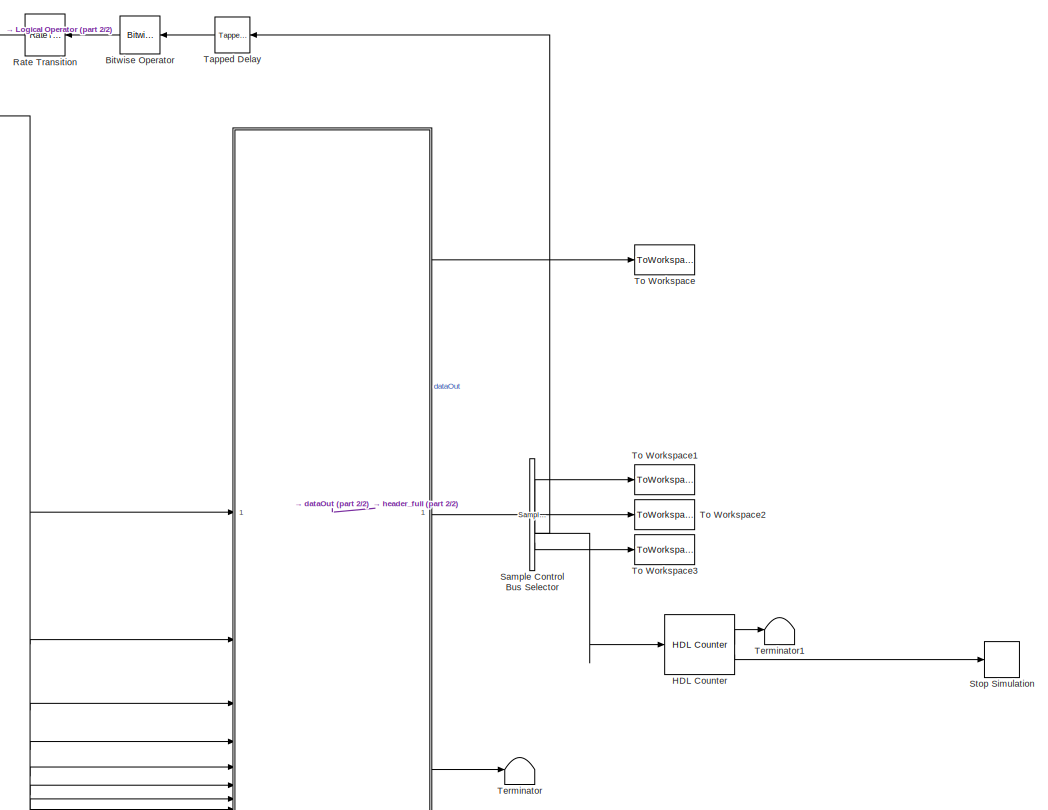
[diagram: root canvas - part 1/2, right side, full height]
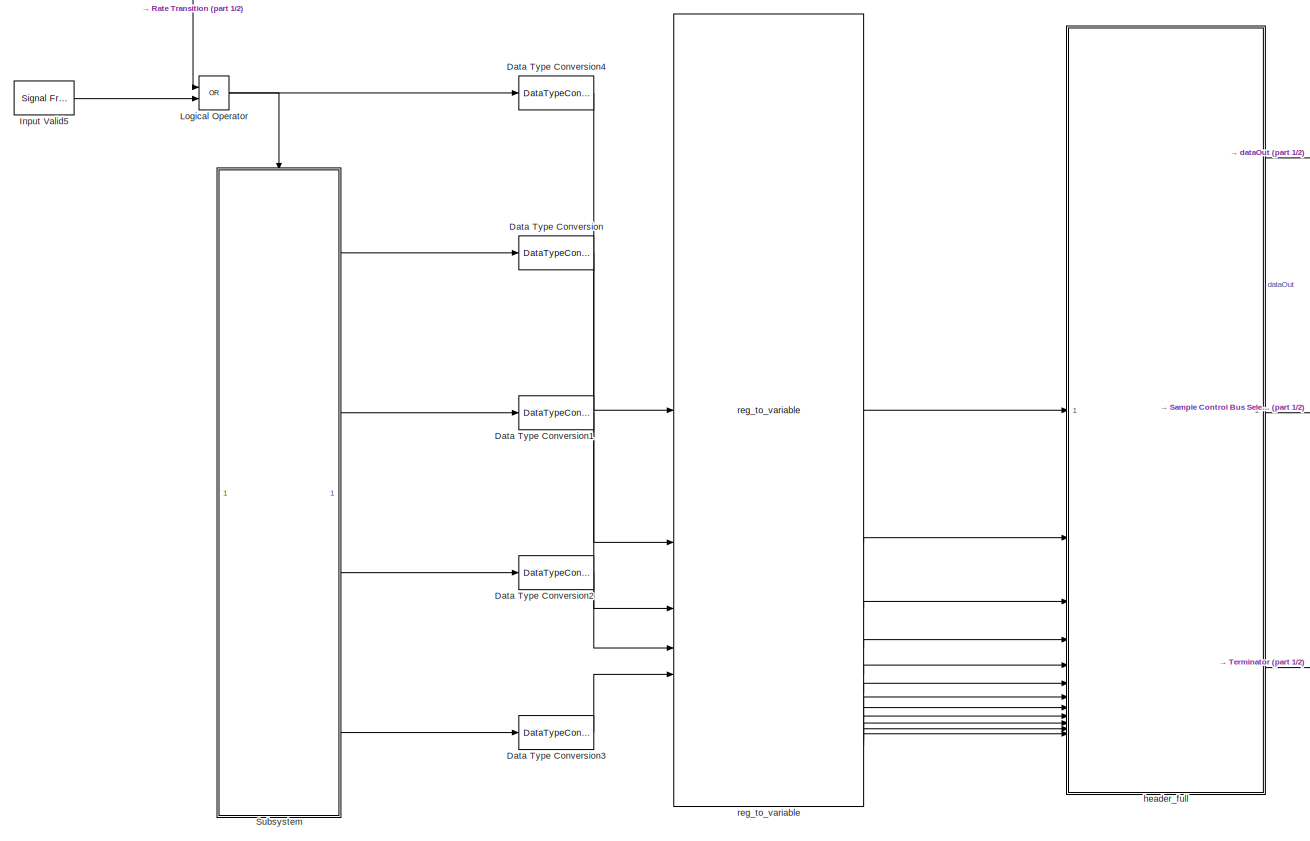
[diagram: root canvas - part 2/2, center side, full height]
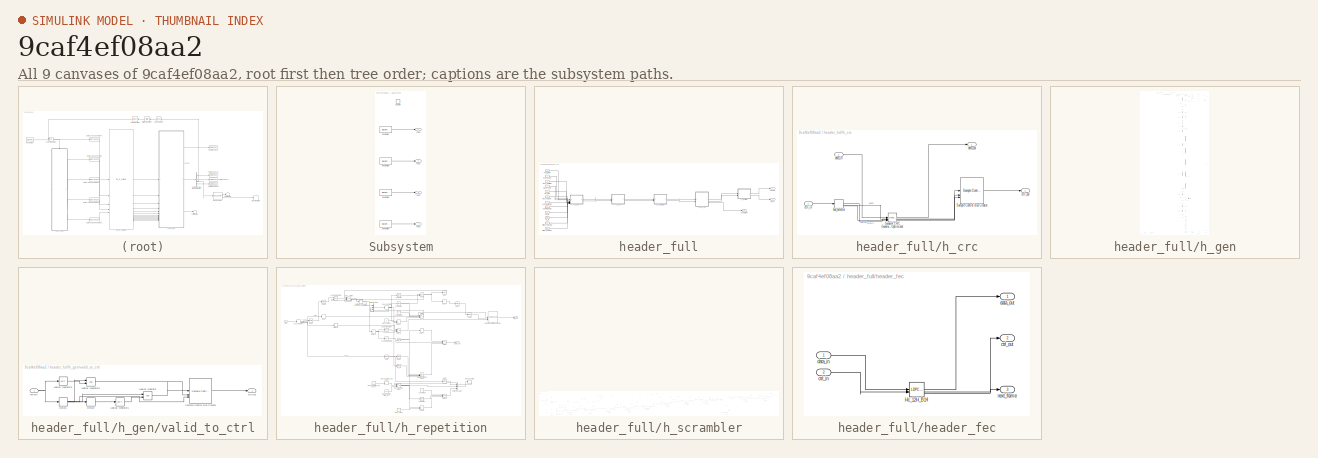
[diagram: thumbnail index - all 9 canvases of the model, root first then tree order]
MODEL slx_9caf4ef08aa2
KIND model
CONFIG AbsTol = auto
CONFIG EnableMultiTasking = off
CONFIG FixedStep = auto
CONFIG MaxStep = auto
CONFIG MinStep = auto
CONFIG RelTol = 1e-3
CONFIG SampleTimeConstraint = Unconstrained
CONFIG SolverName = VariableStepAuto
CONFIG StartTime = 0.0
CONFIG StopTime = 10.0
BLOCK [Reference] Bitwise Operator  REF=simulink/Logic and Bit
Operations/Bitwise
Operator
  LibrarySourceBlock = hdlsllib/Logic and Bit\nOperations/Bitwise\nOperator
  NameLocation = top
  SourceBlock = simulink/Logic and Bit\nOperations/Bitwise\nOperator
  SourceType = Bitwise Operator
BLOCK [DataTypeConversion] Data Type Conversion
  OutDataTypeStr = uint32
  RndMeth = Floor
  SaturateOnIntegerOverflow = off
BLOCK [DataTypeConversion] Data Type Conversion1
  OutDataTypeStr = uint32
  RndMeth = Floor
  SaturateOnIntegerOverflow = off
BLOCK [DataTypeConversion] Data Type Conversion2
  OutDataTypeStr = uint32
  RndMeth = Floor
  SaturateOnIntegerOverflow = off
BLOCK [DataTypeConversion] Data Type Conversion3
  OutDataTypeStr = uint32
  RndMeth = Floor
  SaturateOnIntegerOverflow = off
BLOCK [DataTypeConversion] Data Type Conversion4
  OutDataTypeStr = boolean
  RndMeth = Floor
  SaturateOnIntegerOverflow = off
BLOCK [Reference] HDL Counter  REF=hdlsllib/Sources/HDL Counter
  SourceBlock = hdlsllib/Sources/HDL Counter
  SourceType = HDL Counter
BLOCK [Reference] Input Valid5  REF=dspsrcs4/Signal From
Workspace
  SourceBlock = dspsrcs4/Signal From\nWorkspace
  SourceType = Signal From Workspace
BLOCK [Logic] Logical Operator
  AllPortsSameDT = off
  IconShape = distinctive
  Operator = OR
  OutDataTypeStr = boolean
BLOCK [RateTransition] Rate Transition
  NameLocation = top
  OutPortSampleTimeMultiple = 8
  OutPortSampleTimeOpt = Multiple of input port sample time
BLOCK [Reference] Sample Control Bus Selector  REF=whdlutilities/Sample Control
Bus Selector
  SourceBlock = whdlutilities/Sample Control\nBus Selector
BLOCK [Stop] Stop Simulation
BLOCK [SubSystem] Subsystem
BLOCK [EnablePort] Subsystem/Enable
BLOCK [Reference] Subsystem/Input Valid1  REF=dspsrcs4/Signal From
Workspace
  SourceBlock = dspsrcs4/Signal From\nWorkspace
  SourceType = Signal From Workspace
BLOCK [Reference] Subsystem/Input Valid2  REF=dspsrcs4/Signal From
Workspace
  SourceBlock = dspsrcs4/Signal From\nWorkspace
  SourceType = Signal From Workspace
BLOCK [Reference] Subsystem/Input Valid3  REF=dspsrcs4/Signal From
Workspace
  SourceBlock = dspsrcs4/Signal From\nWorkspace
  SourceType = Signal From Workspace
BLOCK [Reference] Subsystem/Input Valid4  REF=dspsrcs4/Signal From
Workspace
  SourceBlock = dspsrcs4/Signal From\nWorkspace
  SourceType = Signal From Workspace
BLOCK [Outport] Subsystem/reg0
BLOCK [Outport] Subsystem/reg1
  Port = 2
BLOCK [Outport] Subsystem/reg2
  Port = 3
BLOCK [Outport] Subsystem/reg3
  Port = 4
BLOCK [Reference] Tapped Delay  REF=simulink/Discrete/Tapped Delay
  LibrarySourceBlock = hdlsllib/Discrete/Tapped Delay
  NameLocation = top
  SourceBlock = simulink/Discrete/Tapped Delay
  SourceType = Tapped Delay Line
BLOCK [Terminator] Terminator
BLOCK [Terminator] Terminator1
BLOCK [ToWorkspace] To Workspace
  MaxDataPoints = inf
  SampleTime = 1/fs
  Save2DSignal = 2-D array (concatenate along first dimension)
  VariableName = dataOut
BLOCK [ToWorkspace] To Workspace1
  MaxDataPoints = inf
  SampleTime = 1/fs
  Save2DSignal = 2-D array (concatenate along first dimension)
  VariableName = startOut
BLOCK [ToWorkspace] To Workspace2
  MaxDataPoints = inf
  SampleTime = 1/fs
  Save2DSignal = 2-D array (concatenate along first dimension)
  VariableName = endOut
BLOCK [ToWorkspace] To Workspace3
  MaxDataPoints = inf
  SampleTime = 1/fs
  Save2DSignal = 2-D array (concatenate along first dimension)
  VariableName = validOut
BLOCK [SubSystem] header_full
  TreatAsAtomicUnit = on
BLOCK [Inport] header_full/bat_id
  OutDataTypeStr = boolean
  Port = 9
  PortDimensions = [1 5]
  SampleTime = 8e-08
BLOCK [Inport] header_full/block_size
  OutDataTypeStr = boolean
  Port = 4
  PortDimensions = [1 2]
  SampleTime = 8e-08
BLOCK [Inport] header_full/concat_factor
  OutDataTypeStr = boolean
  Port = 7
  PortDimensions = [1 3]
  SampleTime = 8e-08
BLOCK [Inport] header_full/cp_id
  OutDataTypeStr = boolean
  Port = 10
  PortDimensions = [1 3]
  SampleTime = 8e-08
BLOCK [Outport] header_full/ctrl_out
  Port = 2
  SampleTime = 1e-08
BLOCK [Inport] header_full/fec_rate
  OutDataTypeStr = boolean
  Port = 5
  PortDimensions = [1 3]
  SampleTime = 8e-08
BLOCK [SubSystem] header_full/h_crc
BLOCK [Reference] header_full/h_crc/General CRC Generator HDL Optimized  REF=commhdlcrc/General CRC
Generator
HDL Optimized
  SourceBlock = commhdlcrc/General CRC\nGenerator\nHDL Optimized
  SourceType = General CRC Generator HDL Optimized
BLOCK [Reference] header_full/h_crc/Sample Control Bus Creator  REF=whdlutilities/Sample Control
Bus Creator
  SourceBlock = whdlutilities/Sample Control\nBus Creator
  SourceType = Sample Control Bus Creator
BLOCK [BusSelector] header_full/h_crc/bus_selector
  OutputSignals = start,end,valid
BLOCK [Inport] header_full/h_crc/ctrl_in
  Port = 2
  SampleTime = 1e-08
BLOCK [Outport] header_full/h_crc/ctrl_out
  Port = 2
  SampleTime = 1e-08
BLOCK [Inport] header_full/h_crc/data_in
  OutDataTypeStr = boolean
  SampleTime = 1e-08
BLOCK [Outport] header_full/h_crc/data_out
  SampleTime = 1e-08
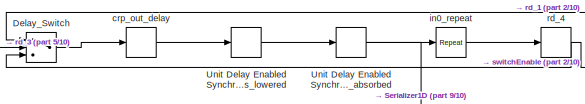
[diagram: header_full/h_gen - part 1/10, top center region]
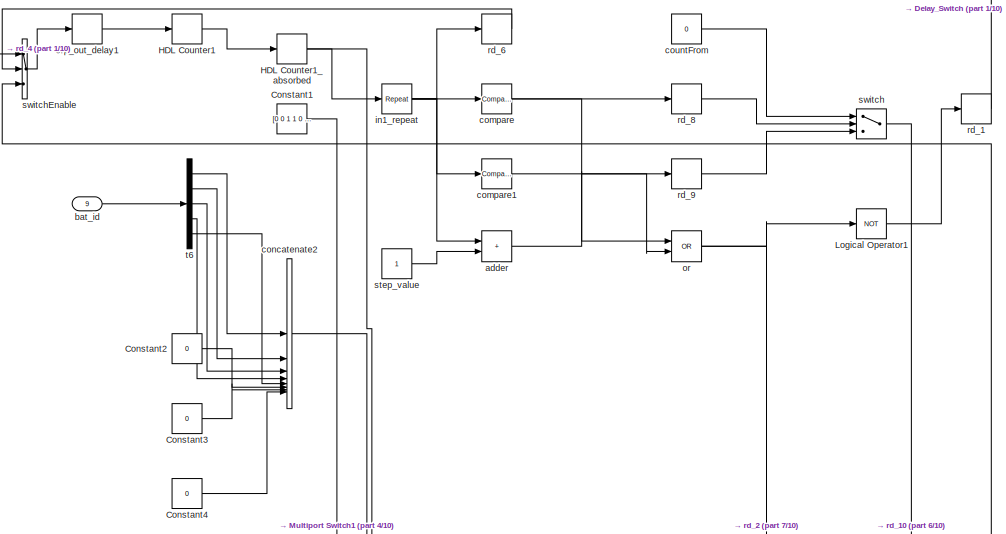
[diagram: header_full/h_gen - part 2/10, top right region]
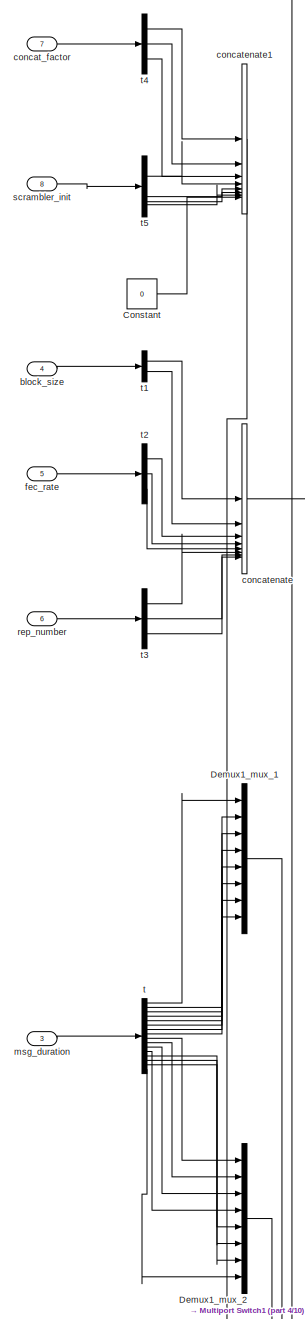
[diagram: header_full/h_gen - part 3/10, top center region]
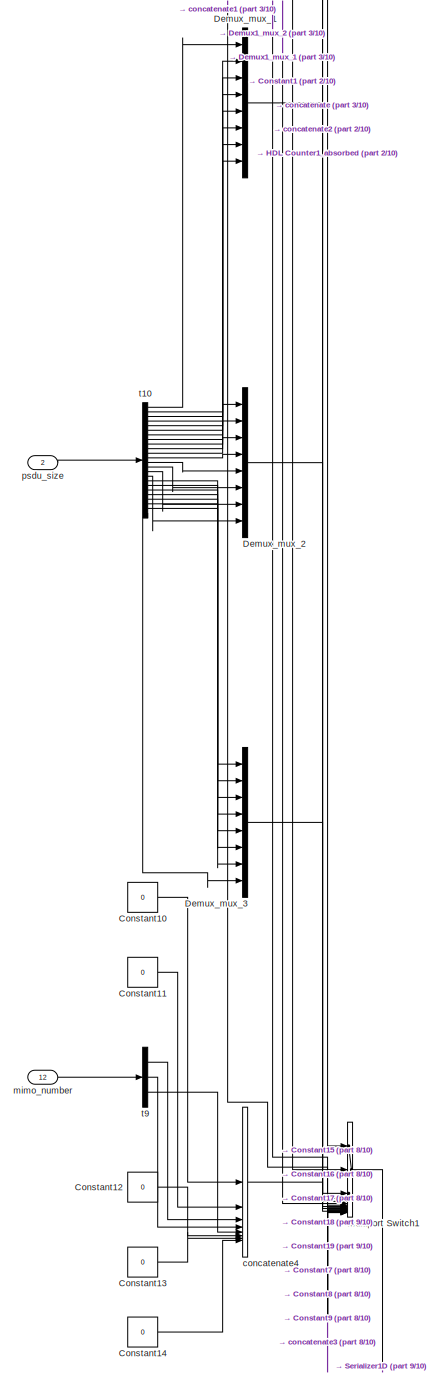
[diagram: header_full/h_gen - part 4/10, central region]
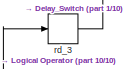
[diagram: header_full/h_gen - part 5/10, middle left region]
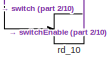
[diagram: header_full/h_gen - part 6/10, middle right region]
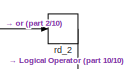
[diagram: header_full/h_gen - part 7/10, middle right region]
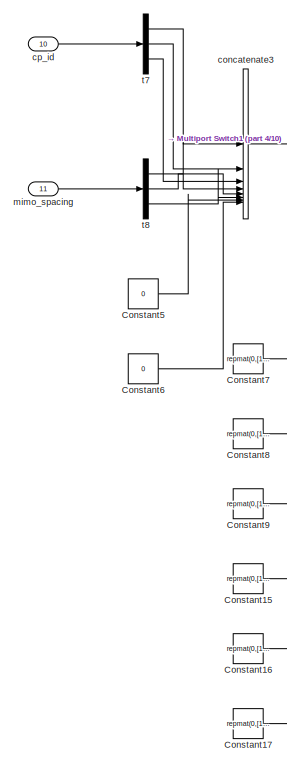
[diagram: header_full/h_gen - part 8/10, bottom center region]
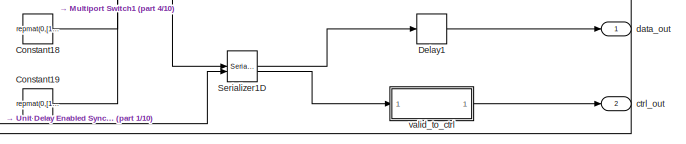
[diagram: header_full/h_gen - part 9/10, bottom right region]
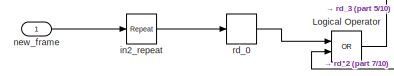
[diagram: header_full/h_gen - part 10/10, bottom left region]
BLOCK [SubSystem] header_full/h_gen
BLOCK [Constant] header_full/h_gen/Constant
  OutDataTypeStr = boolean
  SampleTime = 8e-08
  Value = 0
BLOCK [Constant] header_full/h_gen/Constant1
  OutDataTypeStr = boolean
  SampleTime = 8e-08
  Value = [0 0 1 1 0 0 0 0]
  VectorParams1D = off
BLOCK [Constant] header_full/h_gen/Constant10
  OutDataTypeStr = boolean
  SampleTime = 8e-08
  Value = 0
BLOCK [Constant] header_full/h_gen/Constant11
  OutDataTypeStr = boolean
  SampleTime = 8e-08
  Value = 0
BLOCK [Constant] header_full/h_gen/Constant12
  OutDataTypeStr = boolean
  SampleTime = 8e-08
  Value = 0
BLOCK [Constant] header_full/h_gen/Constant13
  OutDataTypeStr = boolean
  SampleTime = 8e-08
  Value = 0
BLOCK [Constant] header_full/h_gen/Constant14
  OutDataTypeStr = boolean
  SampleTime = 8e-08
  Value = 0
BLOCK [Constant] header_full/h_gen/Constant15
  OutDataTypeStr = boolean
  SampleTime = 8e-08
  Value = repmat(0,[1  8])
  VectorParams1D = off
BLOCK [Constant] header_full/h_gen/Constant16
  OutDataTypeStr = boolean
  SampleTime = 8e-08
  Value = repmat(0,[1  8])
  VectorParams1D = off
BLOCK [Constant] header_full/h_gen/Constant17
  OutDataTypeStr = boolean
  SampleTime = 8e-08
  Value = repmat(0,[1  8])
  VectorParams1D = off
BLOCK [Constant] header_full/h_gen/Constant18
  OutDataTypeStr = boolean
  SampleTime = 8e-08
  Value = repmat(0,[1  8])
  VectorParams1D = off
BLOCK [Constant] header_full/h_gen/Constant19
  OutDataTypeStr = boolean
  SampleTime = 8e-08
  Value = repmat(0,[1  8])
  VectorParams1D = off
BLOCK [Constant] header_full/h_gen/Constant2
  OutDataTypeStr = boolean
  SampleTime = 8e-08
  Value = 0
BLOCK [Constant] header_full/h_gen/Constant3
  OutDataTypeStr = boolean
  SampleTime = 8e-08
  Value = 0
BLOCK [Constant] header_full/h_gen/Constant4
  OutDataTypeStr = boolean
  SampleTime = 8e-08
  Value = 0
BLOCK [Constant] header_full/h_gen/Constant5
  OutDataTypeStr = boolean
  SampleTime = 8e-08
  Value = 0
BLOCK [Constant] header_full/h_gen/Constant6
  OutDataTypeStr = boolean
  SampleTime = 8e-08
  Value = 0
BLOCK [Constant] header_full/h_gen/Constant7
  OutDataTypeStr = boolean
  SampleTime = 8e-08
  Value = repmat(0,[1  8])
  VectorParams1D = off
BLOCK [Constant] header_full/h_gen/Constant8
  OutDataTypeStr = boolean
  SampleTime = 8e-08
  Value = repmat(0,[1  8])
  VectorParams1D = off
BLOCK [Constant] header_full/h_gen/Constant9
  OutDataTypeStr = boolean
  SampleTime = 8e-08
  Value = repmat(0,[1  8])
  VectorParams1D = off
BLOCK [Delay] header_full/h_gen/Delay1
  DelayLength = double(1)
  InitialCondition = 0
  InputPortMap = u0
  SampleTime = 1e-08
BLOCK [Switch] header_full/h_gen/Delay_Switch
  Criteria = u2 ~= 0
  InputSameDT = off
  OutDataTypeStr = boolean
  SampleTime = 1e-08
  SaturateOnIntegerOverflow = off
  Threshold = double(0)
BLOCK [Mux] header_full/h_gen/Demux1_mux_1
  DisplayOption = bar
  Inputs = 8
BLOCK [Mux] header_full/h_gen/Demux1_mux_2
  DisplayOption = bar
  Inputs = 8
BLOCK [Mux] header_full/h_gen/Demux_mux_1
  DisplayOption = bar
  Inputs = 8
BLOCK [Mux] header_full/h_gen/Demux_mux_2
  DisplayOption = bar
  Inputs = 8
BLOCK [Mux] header_full/h_gen/Demux_mux_3
  DisplayOption = bar
  Inputs = 8
BLOCK [RateTransition] header_full/h_gen/HDL Counter1
  OutPortSampleTimeMultiple = 8
  OutPortSampleTimeOpt = Multiple of input port sample time
BLOCK [Delay] header_full/h_gen/HDL Counter1_absorbed
  DelayLength = 0
  InputPortMap = u0
BLOCK [Logic] header_full/h_gen/Logical Operator
  AllPortsSameDT = off
  Operator = OR
  OutDataTypeStr = boolean
  SampleTime = 1e-08
BLOCK [Logic] header_full/h_gen/Logical Operator1
  AllPortsSameDT = off
  Inputs = 1
  Operator = NOT
  OutDataTypeStr = boolean
  SampleTime = 1e-08
BLOCK [MultiPortSwitch] header_full/h_gen/Multiport Switch1
  DataPortOrder = Zero-based contiguous
  DiagnosticForDefault = None
  InputSameDT = off
  Inputs = 19
  SampleTime = 8e-08
  SaturateOnIntegerOverflow = off
  zeroidx = on
BLOCK [Reference] header_full/h_gen/Serializer1D  REF=hdlsllib/HDL Operations/Serializer1D
  SourceBlock = hdlsllib/HDL Operations/Serializer1D
  SourceType = Serializer1D
BLOCK [RateTransition] header_full/h_gen/Unit Delay Enabled Synchronous_lowered
  OutPortSampleTimeMultiple = 8
  OutPortSampleTimeOpt = Multiple of input port sample time
BLOCK [Delay] header_full/h_gen/Unit Delay Enabled Synchronous_lowered_absorbed
  DelayLength = 0
  InputPortMap = u0
BLOCK [Sum] header_full/h_gen/adder
  AccumDataTypeStr = fixdt(0, 5, 0)
  IconShape = rectangular
  OutDataTypeStr = fixdt(0, 5, 0)
  SampleTime = 1e-08
BLOCK [Inport] header_full/h_gen/bat_id
  OutDataTypeStr = boolean
  Port = 9
  PortDimensions = [1 5]
  SampleTime = 8e-08
BLOCK [Inport] header_full/h_gen/block_size
  OutDataTypeStr = boolean
  Port = 4
  PortDimensions = [1 2]
  SampleTime = 8e-08
BLOCK [Reference] header_full/h_gen/compare  REF=simulink/Logic and Bit
Operations/Compare
To Constant
  SourceBlock = simulink/Logic and Bit\nOperations/Compare\nTo Constant
  SourceType = Compare To Constant
BLOCK [Reference] header_full/h_gen/compare1  REF=simulink/Logic and Bit
Operations/Compare
To Constant
  SourceBlock = simulink/Logic and Bit\nOperations/Compare\nTo Constant
  SourceType = Compare To Constant
BLOCK [Inport] header_full/h_gen/concat_factor
  OutDataTypeStr = boolean
  Port = 7
  PortDimensions = [1 3]
  SampleTime = 8e-08
BLOCK [Concatenate] header_full/h_gen/concatenate
  ConcatenateDimension = 2
  Mode = Multidimensional array
  NumInputs = 8
BLOCK [Concatenate] header_full/h_gen/concatenate1
  ConcatenateDimension = 2
  Mode = Multidimensional array
  NumInputs = 8
BLOCK [Concatenate] header_full/h_gen/concatenate2
  ConcatenateDimension = 2
  Mode = Multidimensional array
  NumInputs = 8
BLOCK [Concatenate] header_full/h_gen/concatenate3
  ConcatenateDimension = 2
  Mode = Multidimensional array
  NumInputs = 8
BLOCK [Concatenate] header_full/h_gen/concatenate4
  ConcatenateDimension = 2
  Mode = Multidimensional array
  NumInputs = 8
BLOCK [Constant] header_full/h_gen/countFrom
  OutDataTypeStr = fixdt(0, 5, 0)
  SampleTime = 1e-08
  Value = 0
  VectorParams1D = off
BLOCK [Inport] header_full/h_gen/cp_id
  OutDataTypeStr = boolean
  Port = 10
  PortDimensions = [1 3]
  SampleTime = 8e-08
BLOCK [Delay] header_full/h_gen/crp_out_delay
  DelayLength = double(1)
  InitialCondition = 0
  InputPortMap = u0
  SampleTime = 1e-08
BLOCK [Delay] header_full/h_gen/crp_out_delay1
  DelayLength = double(1)
  InitialCondition = 0
  InputPortMap = u0
  SampleTime = 1e-08
BLOCK [Outport] header_full/h_gen/ctrl_out
  Port = 2
  SampleTime = 1e-08
BLOCK [Outport] header_full/h_gen/data_out
  SampleTime = 1e-08
BLOCK [Inport] header_full/h_gen/fec_rate
  OutDataTypeStr = boolean
  Port = 5
  PortDimensions = [1 3]
  SampleTime = 8e-08
BLOCK [Reference] header_full/h_gen/in0_repeat  REF=dspsigops/Repeat
  SourceBlock = dspsigops/Repeat
  SourceType = Repeat
  UserDataPersistent = on
BLOCK [Reference] header_full/h_gen/in1_repeat  REF=dspsigops/Repeat
  SourceBlock = dspsigops/Repeat
  SourceType = Repeat
  UserDataPersistent = on
BLOCK [Reference] header_full/h_gen/in2_repeat  REF=dspsigops/Repeat
  SourceBlock = dspsigops/Repeat
  SourceType = Repeat
  UserDataPersistent = on
BLOCK [Inport] header_full/h_gen/mimo_number
  OutDataTypeStr = boolean
  Port = 12
  PortDimensions = [1 3]
  SampleTime = 8e-08
BLOCK [Inport] header_full/h_gen/mimo_spacing
  OutDataTypeStr = boolean
  Port = 11
  PortDimensions = [1 3]
  SampleTime = 8e-08
BLOCK [Inport] header_full/h_gen/msg_duration
  OutDataTypeStr = boolean
  Port = 3
  PortDimensions = [1 16]
  SampleTime = 8e-08
BLOCK [Inport] header_full/h_gen/new_frame
  OutDataTypeStr = boolean
  SampleTime = 8e-08
BLOCK [Logic] header_full/h_gen/or
  AllPortsSameDT = off
  Operator = OR
  OutDataTypeStr = boolean
  SampleTime = 1e-08
BLOCK [Inport] header_full/h_gen/psdu_size
  OutDataTypeStr = boolean
  Port = 2
  PortDimensions = [1 24]
  SampleTime = 8e-08
BLOCK [Delay] header_full/h_gen/rd_0
  DelayLength = double(1)
  InitialCondition = 0
  InputPortMap = u0
  SampleTime = 1e-08
BLOCK [Delay] header_full/h_gen/rd_1
  DelayLength = double(2)
  InitialCondition = 0
  InputPortMap = u0
  SampleTime = 1e-08
BLOCK [Delay] header_full/h_gen/rd_10
  DelayLength = double(1)
  InitialCondition = 0
  InputPortMap = u0
  SampleTime = 1e-08
BLOCK [Delay] header_full/h_gen/rd_2
  DelayLength = double(1)
  InitialCondition = 0
  InputPortMap = u0
  SampleTime = 1e-08
BLOCK [Delay] header_full/h_gen/rd_3
  DelayLength = double(1)
  InitialCondition = 0
  InputPortMap = u0
  SampleTime = 1e-08
BLOCK [Delay] header_full/h_gen/rd_4
  DelayLength = double(2)
  InitialCondition = 0
  InputPortMap = u0
  SampleTime = 1e-08
BLOCK [Delay] header_full/h_gen/rd_6
  DelayLength = double(2)
  InitialCondition = 0
  InputPortMap = u0
  SampleTime = 1e-08
BLOCK [Delay] header_full/h_gen/rd_8
  DelayLength = double(1)
  InitialCondition = 0
  InputPortMap = u0
  SampleTime = 1e-08
BLOCK [Delay] header_full/h_gen/rd_9
  DelayLength = double(1)
  InitialCondition = 0
  InputPortMap = u0
  SampleTime = 1e-08
BLOCK [Inport] header_full/h_gen/rep_number
  OutDataTypeStr = boolean
  Port = 6
  PortDimensions = [1 3]
  SampleTime = 8e-08
BLOCK [Inport] header_full/h_gen/scrambler_init
  OutDataTypeStr = boolean
  Port = 8
  PortDimensions = [1 4]
  SampleTime = 8e-08
BLOCK [Constant] header_full/h_gen/step_value
  OutDataTypeStr = fixdt(0, 5, 0)
  SampleTime = 1e-08
  VectorParams1D = off
BLOCK [Switch] header_full/h_gen/switch
  Criteria = u2 ~= 0
  InputSameDT = off
  OutDataTypeStr = fixdt(0, 5, 0)
  SampleTime = 1e-08
  SaturateOnIntegerOverflow = off
  Threshold = double(0)
BLOCK [MultiPortSwitch] header_full/h_gen/switchEnable
  DataPortOrder = Zero-based contiguous
  DiagnosticForDefault = None
  InputSameDT = off
  Inputs = 2
  OutDataTypeStr = fixdt(0, 5, 0)
  SampleTime = 1e-08
  SaturateOnIntegerOverflow = off
  zeroidx = on
BLOCK [Demux] header_full/h_gen/t
  Outputs = 16
BLOCK [Demux] header_full/h_gen/t1
  Outputs = 2
BLOCK [Demux] header_full/h_gen/t10
  Outputs = 24
BLOCK [Demux] header_full/h_gen/t2
  Outputs = 3
BLOCK [Demux] header_full/h_gen/t3
  Outputs = 3
BLOCK [Demux] header_full/h_gen/t4
  Outputs = 3
BLOCK [Demux] header_full/h_gen/t5
BLOCK [Demux] header_full/h_gen/t6
  Outputs = 5
BLOCK [Demux] header_full/h_gen/t7
  Outputs = 3
BLOCK [Demux] header_full/h_gen/t8
  Outputs = 3
BLOCK [Demux] header_full/h_gen/t9
  Outputs = 3
BLOCK [SubSystem] header_full/h_gen/valid_to_ctrl
BLOCK [Delay] header_full/h_gen/valid_to_ctrl/Delay1
  DelayLength = double(1)
  InitialCondition = 0
  InputPortMap = u0
  SampleTime = 1e-08
BLOCK [Delay] header_full/h_gen/valid_to_ctrl/Delay2
  DelayLength = double(1)
  InitialCondition = 0
  InputPortMap = u0
  SampleTime = 1e-08
BLOCK [Logic] header_full/h_gen/valid_to_ctrl/Logical Operator
  AllPortsSameDT = off
  OutDataTypeStr = boolean
  SampleTime = 1e-08
BLOCK [Logic] header_full/h_gen/valid_to_ctrl/Logical Operator1
  AllPortsSameDT = off
  Inputs = 1
  Operator = NOT
  OutDataTypeStr = boolean
  SampleTime = 1e-08
BLOCK [Logic] header_full/h_gen/valid_to_ctrl/Logical Operator2
  AllPortsSameDT = off
  OutDataTypeStr = boolean
  SampleTime = 1e-08
BLOCK [Logic] header_full/h_gen/valid_to_ctrl/Logical Operator3
  AllPortsSameDT = off
  Inputs = 1
  Operator = NOT
  OutDataTypeStr = boolean
  SampleTime = 1e-08
BLOCK [Reference] header_full/h_gen/valid_to_ctrl/Sample Control Bus Creator  REF=whdlutilities/Sample Control
Bus Creator
  SourceBlock = whdlutilities/Sample Control\nBus Creator
  SourceType = Sample Control Bus Creator
BLOCK [Outport] header_full/h_gen/valid_to_ctrl/ctrlOut
  SampleTime = 1e-08
BLOCK [Inport] header_full/h_gen/valid_to_ctrl/validIn
  OutDataTypeStr = boolean
  SampleTime = 1e-08
BLOCK [SubSystem] header_full/h_repetition
BLOCK [Delay] header_full/h_repetition/Delay
  DelayLength = double(1)
  InitialCondition = 0
  InputPortMap = u0
  SampleTime = 1e-08
BLOCK [Delay] header_full/h_repetition/Delay1
  DelayLength = double(1)
  InitialCondition = 0
  InputPortMap = u0
  SampleTime = 1e-08
BLOCK [Delay] header_full/h_repetition/Delay2
  DelayLength = double(1)
  InitialCondition = 0
  InputPortMap = u0
  SampleTime = 1e-08
BLOCK [Delay] header_full/h_repetition/Delay3
  DelayLength = double(1)
  InitialCondition = 0
  InputPortMap = u0
  SampleTime = 1e-08
BLOCK [Delay] header_full/h_repetition/Delay4
  DelayLength = double(1)
  InitialCondition = 0
  InputPortMap = u0
  SampleTime = 1e-08
BLOCK [Switch] header_full/h_repetition/Delay_Switch
  Criteria = u2 ~= 0
  InputSameDT = off
  OutDataTypeStr = boolean
  SampleTime = 1e-08
  SaturateOnIntegerOverflow = off
  Threshold = double(0)
BLOCK [Reference] header_full/h_repetition/From2  REF=hdlmdlgenlib/Buffer
  SourceBlock = hdlmdlgenlib/Buffer
  SourceType = Buffer/Wire
BLOCK [Reference] header_full/h_repetition/From6  REF=hdlmdlgenlib/Buffer
  SourceBlock = hdlmdlgenlib/Buffer
  SourceType = Buffer/Wire
BLOCK [Reference] header_full/h_repetition/From7  REF=hdlmdlgenlib/Buffer
  SourceBlock = hdlmdlgenlib/Buffer
  SourceType = Buffer/Wire
BLOCK [Reference] header_full/h_repetition/From8  REF=hdlmdlgenlib/Buffer
  SourceBlock = hdlmdlgenlib/Buffer
  SourceType = Buffer/Wire
BLOCK [Reference] header_full/h_repetition/Goto  REF=hdlmdlgenlib/Buffer
  SourceBlock = hdlmdlgenlib/Buffer
  SourceType = Buffer/Wire
BLOCK [Reference] header_full/h_repetition/Goto1  REF=hdlmdlgenlib/Buffer
  SourceBlock = hdlmdlgenlib/Buffer
  SourceType = Buffer/Wire
BLOCK [Reference] header_full/h_repetition/Goto4  REF=hdlmdlgenlib/Buffer
  SourceBlock = hdlmdlgenlib/Buffer
  SourceType = Buffer/Wire
BLOCK [Delay] header_full/h_repetition/HDL Counter2
  DelayLength = double(1)
  InitialCondition = 0
  InputPortMap = u0
  SampleTime = 1e-08
BLOCK [Constant] header_full/h_repetition/HDL Counter2_Initial_Val
  OutDataTypeStr = fixdt(0, 9, 0)
  SampleTime = 1e-08
  Value = 334
BLOCK [Constant] header_full/h_repetition/HDL Counter2_ctrl_const
  OutDataTypeStr = boolean
  SampleTime = 1e-08
BLOCK [Delay] header_full/h_repetition/HDL Counter2_ctrl_delay
  DelayLength = double(1)
  InitialCondition = 0
  InputPortMap = u0
  SampleTime = 1e-08
BLOCK [Switch] header_full/h_repetition/HDL Counter2_switch
  Criteria = u2 ~= 0
  InputSameDT = off
  OutDataTypeStr = fixdt(0, 9, 0)
  SampleTime = 1e-08
  SaturateOnIntegerOverflow = off
  Threshold = double(0)
BLOCK [Delay] header_full/h_repetition/HDL Counter3
  DelayLength = double(1)
  InitialCondition = 0
  InputPortMap = u0
  SampleTime = 1e-08
BLOCK [Logic] header_full/h_repetition/Logical Operator
  AllPortsSameDT = off
  Inputs = 1
  Operator = NOT
  OutDataTypeStr = boolean
  SampleTime = 1e-08
BLOCK [Logic] header_full/h_repetition/Logical Operator1
  AllPortsSameDT = off
  Operator = OR
  OutDataTypeStr = boolean
  SampleTime = 1e-08
BLOCK [Logic] header_full/h_repetition/Logical Operator2
  AllPortsSameDT = off
  Inputs = 1
  Operator = NOT
  OutDataTypeStr = boolean
  SampleTime = 1e-08
BLOCK [Logic] header_full/h_repetition/NOT
  AllPortsSameDT = off
  Inputs = 1
  Operator = NOT
  OutDataTypeStr = boolean
  SampleTime = 1e-08
BLOCK [Reference] header_full/h_repetition/Sample Control Bus Creator  REF=whdlutilities/Sample Control
Bus Creator
  SourceBlock = whdlutilities/Sample Control\nBus Creator
  SourceType = Sample Control Bus Creator
BLOCK [Reference] header_full/h_repetition/Simple Dual Port RAM  REF=hdlsllib/HDL RAMs/Simple Dual Port RAM
  SourceBlock = hdlsllib/HDL RAMs/Simple Dual Port RAM
  SourceType = Simple Dual-port RAM
BLOCK [Switch] header_full/h_repetition/Switch
  Criteria = u2 ~= 0
  InputSameDT = off
  OutDataTypeStr = boolean
  SampleTime = 1e-08
  SaturateOnIntegerOverflow = off
  Threshold = double(0)
BLOCK [Switch] header_full/h_repetition/Switch1
  Criteria = u2 ~= 0
  InputSameDT = off
  OutDataTypeStr = boolean
  SampleTime = 1e-08
  SaturateOnIntegerOverflow = off
  Threshold = double(0)
BLOCK [Delay] header_full/h_repetition/Unit Delay Enabled Synchronous1_lowered
  DelayLength = double(1)
  InitialCondition = 0
  InputPortMap = u0
  SampleTime = 1e-08
BLOCK [Sum] header_full/h_repetition/adder
  AccumDataTypeStr = fixdt(0, 9, 0)
  IconShape = rectangular
  OutDataTypeStr = fixdt(0, 9, 0)
  SampleTime = 1e-08
BLOCK [Sum] header_full/h_repetition/adder1
  AccumDataTypeStr = fixdt(0, 9, 0)
  IconShape = rectangular
  OutDataTypeStr = fixdt(0, 9, 0)
  SampleTime = 1e-08
BLOCK [BusSelector] header_full/h_repetition/bus_selector
  OutputSignals = start,end,valid
BLOCK [Reference] header_full/h_repetition/compare  REF=simulink/Logic and Bit
Operations/Compare
To Constant
  SourceBlock = simulink/Logic and Bit\nOperations/Compare\nTo Constant
  SourceType = Compare To Constant
BLOCK [Reference] header_full/h_repetition/compare1  REF=simulink/Logic and Bit
Operations/Compare
To Constant
  SourceBlock = simulink/Logic and Bit\nOperations/Compare\nTo Constant
  SourceType = Compare To Constant
BLOCK [Reference] header_full/h_repetition/compare2  REF=simulink/Logic and Bit
Operations/Compare
To Constant
  SourceBlock = simulink/Logic and Bit\nOperations/Compare\nTo Constant
  SourceType = Compare To Constant
BLOCK [Constant] header_full/h_repetition/countFrom
  OutDataTypeStr = fixdt(0, 9, 0)
  SampleTime = 1e-08
  Value = 0
  VectorParams1D = off
BLOCK [Constant] header_full/h_repetition/countFrom1
  OutDataTypeStr = fixdt(0, 9, 0)
  SampleTime = 1e-08
  Value = 0
  VectorParams1D = off
BLOCK [Inport] header_full/h_repetition/ctrl_in
  Port = 2
  SampleTime = 1e-08
BLOCK [Outport] header_full/h_repetition/ctrl_out
  Port = 2
  SampleTime = 1e-08
BLOCK [Inport] header_full/h_repetition/data_in
  OutDataTypeStr = boolean
  SampleTime = 1e-08
BLOCK [Outport] header_full/h_repetition/data_out
  SampleTime = 1e-08
BLOCK [Logic] header_full/h_repetition/or
  AllPortsSameDT = off
  Operator = OR
  OutDataTypeStr = boolean
  SampleTime = 1e-08
BLOCK [Constant] header_full/h_repetition/step_value
  OutDataTypeStr = fixdt(0, 9, 0)
  SampleTime = 1e-08
  VectorParams1D = off
BLOCK [Constant] header_full/h_repetition/step_value1
  OutDataTypeStr = fixdt(0, 9, 0)
  SampleTime = 1e-08
  VectorParams1D = off
BLOCK [Switch] header_full/h_repetition/switch
  Criteria = u2 ~= 0
  InputSameDT = off
  OutDataTypeStr = fixdt(0, 9, 0)
  SampleTime = 1e-08
  SaturateOnIntegerOverflow = off
  Threshold = double(0)
BLOCK [Switch] header_full/h_repetition/switch1
  Criteria = u2 ~= 0
  InputSameDT = off
  OutDataTypeStr = fixdt(0, 9, 0)
  SampleTime = 1e-08
  SaturateOnIntegerOverflow = off
  Threshold = double(0)
BLOCK [MultiPortSwitch] header_full/h_repetition/switchEnable
  DataPortOrder = Zero-based contiguous
  DiagnosticForDefault = None
  InputSameDT = off
  Inputs = 2
  OutDataTypeStr = fixdt(0, 9, 0)
  SampleTime = 1e-08
  SaturateOnIntegerOverflow = off
  zeroidx = on
BLOCK [MultiPortSwitch] header_full/h_repetition/switchEnable1
  DataPortOrder = Zero-based contiguous
  DiagnosticForDefault = None
  InputSameDT = off
  Inputs = 2
  OutDataTypeStr = fixdt(0, 9, 0)
  SampleTime = 1e-08
  SaturateOnIntegerOverflow = off
  zeroidx = on
BLOCK [Reference] header_full/h_repetition/t  REF=hdlmdlgenlib/Buffer
  SourceBlock = hdlmdlgenlib/Buffer
  SourceType = Buffer/Wire
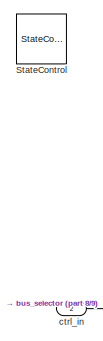
[diagram: header_full/h_scrambler - part 1/9, top left region]
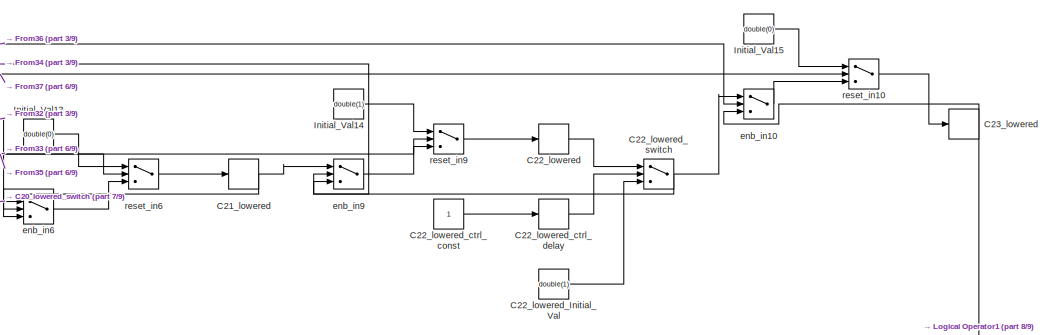
[diagram: header_full/h_scrambler - part 2/9, top right region]
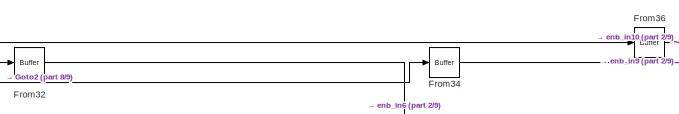
[diagram: header_full/h_scrambler - part 3/9, top center region]
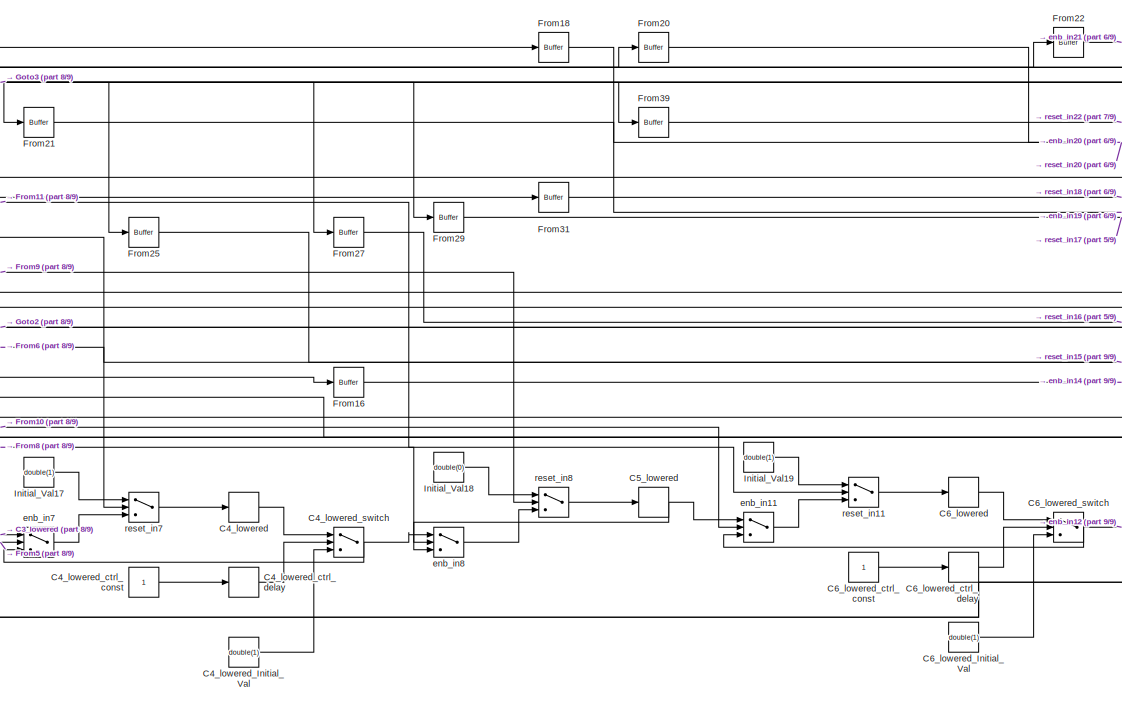
[diagram: header_full/h_scrambler - part 4/9, left side, full height]
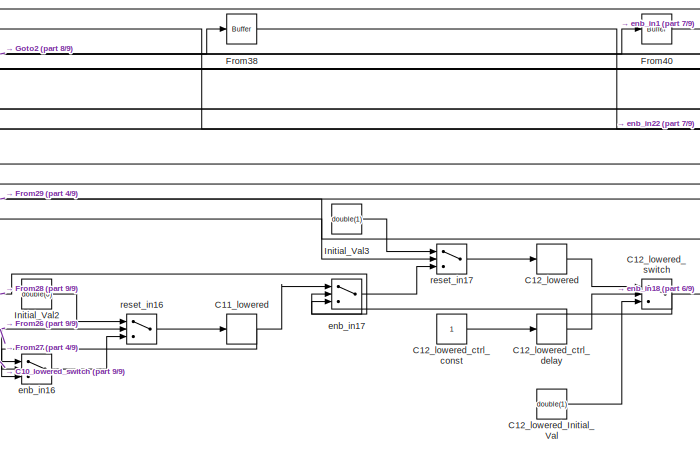
[diagram: header_full/h_scrambler - part 5/9, central region]
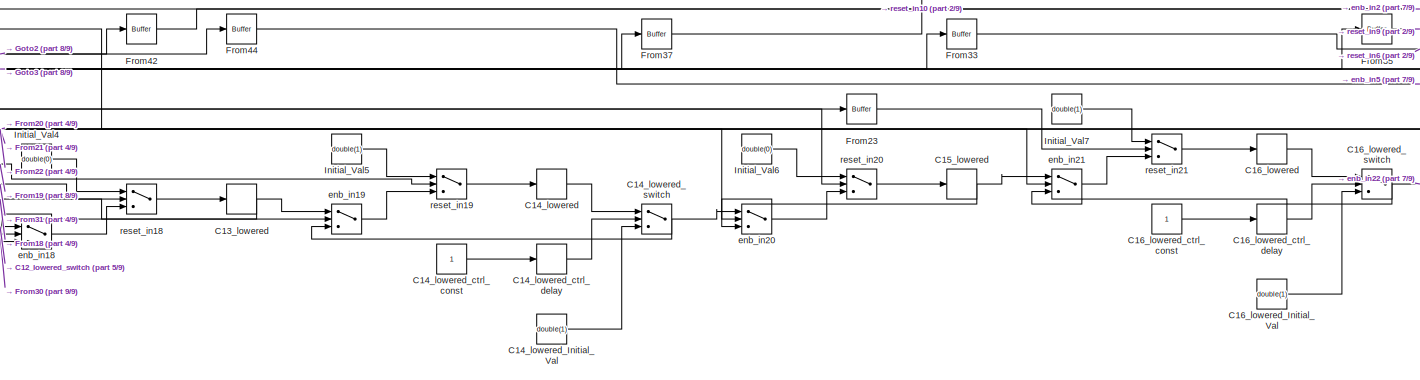
[diagram: header_full/h_scrambler - part 6/9, central region]
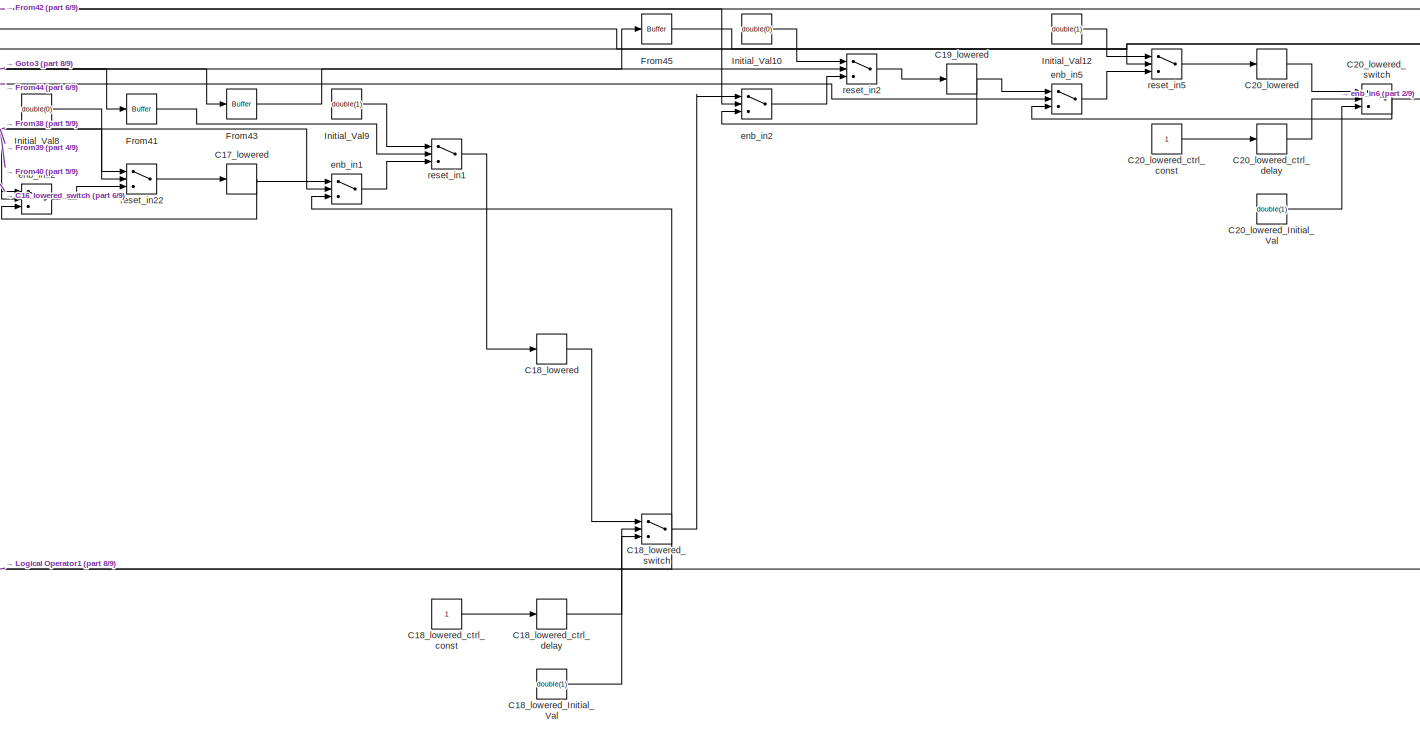
[diagram: header_full/h_scrambler - part 7/9, right side, full height]
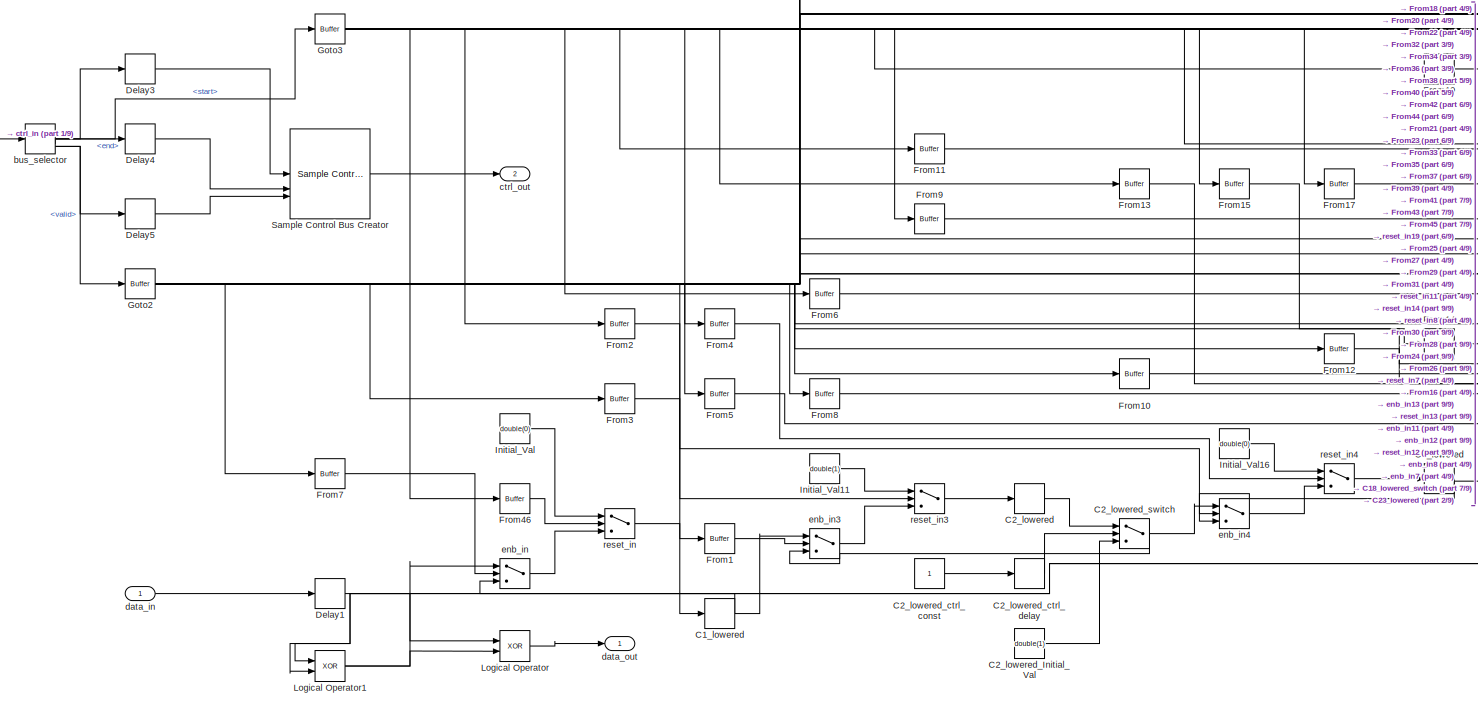
[diagram: header_full/h_scrambler - part 8/9, left side, full height]
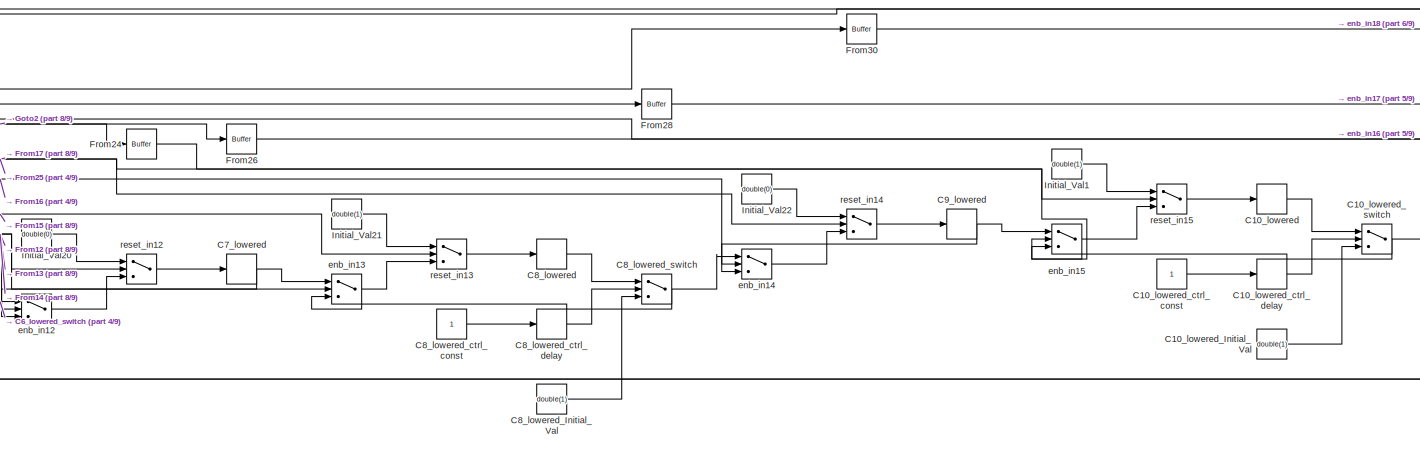
[diagram: header_full/h_scrambler - part 9/9, central region]
BLOCK [SubSystem] header_full/h_scrambler
BLOCK [Delay] header_full/h_scrambler/C10_lowered
  DelayLength = double(1)
  InitialCondition = 0
  InputPortMap = u0
  SampleTime = 1e-08
BLOCK [Constant] header_full/h_scrambler/C10_lowered_Initial_Val
  OutDataTypeStr = boolean
  SampleTime = 1e-08
  Value = double(1)
BLOCK [Constant] header_full/h_scrambler/C10_lowered_ctrl_const
  OutDataTypeStr = boolean
  SampleTime = 1e-08
BLOCK [Delay] header_full/h_scrambler/C10_lowered_ctrl_delay
  DelayLength = double(1)
  InitialCondition = 0
  InputPortMap = u0
  SampleTime = 1e-08
BLOCK [Switch] header_full/h_scrambler/C10_lowered_switch
  Criteria = u2 ~= 0
  InputSameDT = off
  OutDataTypeStr = boolean
  SampleTime = 1e-08
  SaturateOnIntegerOverflow = off
  Threshold = double(0)
BLOCK [Delay] header_full/h_scrambler/C11_lowered
  DelayLength = double(1)
  InitialCondition = 0
  InputPortMap = u0
  SampleTime = 1e-08
BLOCK [Delay] header_full/h_scrambler/C12_lowered
  DelayLength = double(1)
  InitialCondition = 0
  InputPortMap = u0
  SampleTime = 1e-08
BLOCK [Constant] header_full/h_scrambler/C12_lowered_Initial_Val
  OutDataTypeStr = boolean
  SampleTime = 1e-08
  Value = double(1)
BLOCK [Constant] header_full/h_scrambler/C12_lowered_ctrl_const
  OutDataTypeStr = boolean
  SampleTime = 1e-08
BLOCK [Delay] header_full/h_scrambler/C12_lowered_ctrl_delay
  DelayLength = double(1)
  InitialCondition = 0
  InputPortMap = u0
  SampleTime = 1e-08
BLOCK [Switch] header_full/h_scrambler/C12_lowered_switch
  Criteria = u2 ~= 0
  InputSameDT = off
  OutDataTypeStr = boolean
  SampleTime = 1e-08
  SaturateOnIntegerOverflow = off
  Threshold = double(0)
BLOCK [Delay] header_full/h_scrambler/C13_lowered
  DelayLength = double(1)
  InitialCondition = 0
  InputPortMap = u0
  SampleTime = 1e-08
BLOCK [Delay] header_full/h_scrambler/C14_lowered
  DelayLength = double(1)
  InitialCondition = 0
  InputPortMap = u0
  SampleTime = 1e-08
BLOCK [Constant] header_full/h_scrambler/C14_lowered_Initial_Val
  OutDataTypeStr = boolean
  SampleTime = 1e-08
  Value = double(1)
BLOCK [Constant] header_full/h_scrambler/C14_lowered_ctrl_const
  OutDataTypeStr = boolean
  SampleTime = 1e-08
BLOCK [Delay] header_full/h_scrambler/C14_lowered_ctrl_delay
  DelayLength = double(1)
  InitialCondition = 0
  InputPortMap = u0
  SampleTime = 1e-08
BLOCK [Switch] header_full/h_scrambler/C14_lowered_switch
  Criteria = u2 ~= 0
  InputSameDT = off
  OutDataTypeStr = boolean
  SampleTime = 1e-08
  SaturateOnIntegerOverflow = off
  Threshold = double(0)
BLOCK [Delay] header_full/h_scrambler/C15_lowered
  DelayLength = double(1)
  InitialCondition = 0
  InputPortMap = u0
  SampleTime = 1e-08
BLOCK [Delay] header_full/h_scrambler/C16_lowered
  DelayLength = double(1)
  InitialCondition = 0
  InputPortMap = u0
  SampleTime = 1e-08
BLOCK [Constant] header_full/h_scrambler/C16_lowered_Initial_Val
  OutDataTypeStr = boolean
  SampleTime = 1e-08
  Value = double(1)
BLOCK [Constant] header_full/h_scrambler/C16_lowered_ctrl_const
  OutDataTypeStr = boolean
  SampleTime = 1e-08
BLOCK [Delay] header_full/h_scrambler/C16_lowered_ctrl_delay
  DelayLength = double(1)
  InitialCondition = 0
  InputPortMap = u0
  SampleTime = 1e-08
BLOCK [Switch] header_full/h_scrambler/C16_lowered_switch
  Criteria = u2 ~= 0
  InputSameDT = off
  OutDataTypeStr = boolean
  SampleTime = 1e-08
  SaturateOnIntegerOverflow = off
  Threshold = double(0)
BLOCK [Delay] header_full/h_scrambler/C17_lowered
  DelayLength = double(1)
  InitialCondition = 0
  InputPortMap = u0
  SampleTime = 1e-08
BLOCK [Delay] header_full/h_scrambler/C18_lowered
  DelayLength = double(1)
  InitialCondition = 0
  InputPortMap = u0
  SampleTime = 1e-08
BLOCK [Constant] header_full/h_scrambler/C18_lowered_Initial_Val
  OutDataTypeStr = boolean
  SampleTime = 1e-08
  Value = double(1)
BLOCK [Constant] header_full/h_scrambler/C18_lowered_ctrl_const
  OutDataTypeStr = boolean
  SampleTime = 1e-08
BLOCK [Delay] header_full/h_scrambler/C18_lowered_ctrl_delay
  DelayLength = double(1)
  InitialCondition = 0
  InputPortMap = u0
  SampleTime = 1e-08
BLOCK [Switch] header_full/h_scrambler/C18_lowered_switch
  Criteria = u2 ~= 0
  InputSameDT = off
  OutDataTypeStr = boolean
  SampleTime = 1e-08
  SaturateOnIntegerOverflow = off
  Threshold = double(0)
BLOCK [Delay] header_full/h_scrambler/C19_lowered
  DelayLength = double(1)
  InitialCondition = 0
  InputPortMap = u0
  SampleTime = 1e-08
BLOCK [Delay] header_full/h_scrambler/C1_lowered
  DelayLength = double(1)
  InitialCondition = 0
  InputPortMap = u0
  SampleTime = 1e-08
BLOCK [Delay] header_full/h_scrambler/C20_lowered
  DelayLength = double(1)
  InitialCondition = 0
  InputPortMap = u0
  SampleTime = 1e-08
BLOCK [Constant] header_full/h_scrambler/C20_lowered_Initial_Val
  OutDataTypeStr = boolean
  SampleTime = 1e-08
  Value = double(1)
BLOCK [Constant] header_full/h_scrambler/C20_lowered_ctrl_const
  OutDataTypeStr = boolean
  SampleTime = 1e-08
BLOCK [Delay] header_full/h_scrambler/C20_lowered_ctrl_delay
  DelayLength = double(1)
  InitialCondition = 0
  InputPortMap = u0
  SampleTime = 1e-08
BLOCK [Switch] header_full/h_scrambler/C20_lowered_switch
  Criteria = u2 ~= 0
  InputSameDT = off
  OutDataTypeStr = boolean
  SampleTime = 1e-08
  SaturateOnIntegerOverflow = off
  Threshold = double(0)
BLOCK [Delay] header_full/h_scrambler/C21_lowered
  DelayLength = double(1)
  InitialCondition = 0
  InputPortMap = u0
  SampleTime = 1e-08
BLOCK [Delay] header_full/h_scrambler/C22_lowered
  DelayLength = double(1)
  InitialCondition = 0
  InputPortMap = u0
  SampleTime = 1e-08
BLOCK [Constant] header_full/h_scrambler/C22_lowered_Initial_Val
  OutDataTypeStr = boolean
  SampleTime = 1e-08
  Value = double(1)
BLOCK [Constant] header_full/h_scrambler/C22_lowered_ctrl_const
  OutDataTypeStr = boolean
  SampleTime = 1e-08
BLOCK [Delay] header_full/h_scrambler/C22_lowered_ctrl_delay
  DelayLength = double(1)
  InitialCondition = 0
  InputPortMap = u0
  SampleTime = 1e-08
BLOCK [Switch] header_full/h_scrambler/C22_lowered_switch
  Criteria = u2 ~= 0
  InputSameDT = off
  OutDataTypeStr = boolean
  SampleTime = 1e-08
  SaturateOnIntegerOverflow = off
  Threshold = double(0)
BLOCK [Delay] header_full/h_scrambler/C23_lowered
  DelayLength = double(1)
  InitialCondition = 0
  InputPortMap = u0
  SampleTime = 1e-08
BLOCK [Delay] header_full/h_scrambler/C2_lowered
  DelayLength = double(1)
  InitialCondition = 0
  InputPortMap = u0
  SampleTime = 1e-08
BLOCK [Constant] header_full/h_scrambler/C2_lowered_Initial_Val
  OutDataTypeStr = boolean
  SampleTime = 1e-08
  Value = double(1)
BLOCK [Constant] header_full/h_scrambler/C2_lowered_ctrl_const
  OutDataTypeStr = boolean
  SampleTime = 1e-08
BLOCK [Delay] header_full/h_scrambler/C2_lowered_ctrl_delay
  DelayLength = double(1)
  InitialCondition = 0
  InputPortMap = u0
  SampleTime = 1e-08
BLOCK [Switch] header_full/h_scrambler/C2_lowered_switch
  Criteria = u2 ~= 0
  InputSameDT = off
  OutDataTypeStr = boolean
  SampleTime = 1e-08
  SaturateOnIntegerOverflow = off
  Threshold = double(0)
BLOCK [Delay] header_full/h_scrambler/C3_lowered
  DelayLength = double(1)
  InitialCondition = 0
  InputPortMap = u0
  SampleTime = 1e-08
BLOCK [Delay] header_full/h_scrambler/C4_lowered
  DelayLength = double(1)
  InitialCondition = 0
  InputPortMap = u0
  SampleTime = 1e-08
BLOCK [Constant] header_full/h_scrambler/C4_lowered_Initial_Val
  OutDataTypeStr = boolean
  SampleTime = 1e-08
  Value = double(1)
BLOCK [Constant] header_full/h_scrambler/C4_lowered_ctrl_const
  OutDataTypeStr = boolean
  SampleTime = 1e-08
BLOCK [Delay] header_full/h_scrambler/C4_lowered_ctrl_delay
  DelayLength = double(1)
  InitialCondition = 0
  InputPortMap = u0
  SampleTime = 1e-08
BLOCK [Switch] header_full/h_scrambler/C4_lowered_switch
  Criteria = u2 ~= 0
  InputSameDT = off
  OutDataTypeStr = boolean
  SampleTime = 1e-08
  SaturateOnIntegerOverflow = off
  Threshold = double(0)
BLOCK [Delay] header_full/h_scrambler/C5_lowered
  DelayLength = double(1)
  InitialCondition = 0
  InputPortMap = u0
  SampleTime = 1e-08
BLOCK [Delay] header_full/h_scrambler/C6_lowered
  DelayLength = double(1)
  InitialCondition = 0
  InputPortMap = u0
  SampleTime = 1e-08
BLOCK [Constant] header_full/h_scrambler/C6_lowered_Initial_Val
  OutDataTypeStr = boolean
  SampleTime = 1e-08
  Value = double(1)
BLOCK [Constant] header_full/h_scrambler/C6_lowered_ctrl_const
  OutDataTypeStr = boolean
  SampleTime = 1e-08
BLOCK [Delay] header_full/h_scrambler/C6_lowered_ctrl_delay
  DelayLength = double(1)
  InitialCondition = 0
  InputPortMap = u0
  SampleTime = 1e-08
BLOCK [Switch] header_full/h_scrambler/C6_lowered_switch
  Criteria = u2 ~= 0
  InputSameDT = off
  OutDataTypeStr = boolean
  SampleTime = 1e-08
  SaturateOnIntegerOverflow = off
  Threshold = double(0)
BLOCK [Delay] header_full/h_scrambler/C7_lowered
  DelayLength = double(1)
  InitialCondition = 0
  InputPortMap = u0
  SampleTime = 1e-08
BLOCK [Delay] header_full/h_scrambler/C8_lowered
  DelayLength = double(1)
  InitialCondition = 0
  InputPortMap = u0
  SampleTime = 1e-08
BLOCK [Constant] header_full/h_scrambler/C8_lowered_Initial_Val
  OutDataTypeStr = boolean
  SampleTime = 1e-08
  Value = double(1)
BLOCK [Constant] header_full/h_scrambler/C8_lowered_ctrl_const
  OutDataTypeStr = boolean
  SampleTime = 1e-08
BLOCK [Delay] header_full/h_scrambler/C8_lowered_ctrl_delay
  DelayLength = double(1)
  InitialCondition = 0
  InputPortMap = u0
  SampleTime = 1e-08
BLOCK [Switch] header_full/h_scrambler/C8_lowered_switch
  Criteria = u2 ~= 0
  InputSameDT = off
  OutDataTypeStr = boolean
  SampleTime = 1e-08
  SaturateOnIntegerOverflow = off
  Threshold = double(0)
BLOCK [Delay] header_full/h_scrambler/C9_lowered
  DelayLength = double(1)
  InitialCondition = 0
  InputPortMap = u0
  SampleTime = 1e-08
BLOCK [Delay] header_full/h_scrambler/Delay1
  DelayLength = double(1)
  InitialCondition = 0
  InputPortMap = u0
  SampleTime = 1e-08
BLOCK [Delay] header_full/h_scrambler/Delay3
  DelayLength = double(1)
  InitialCondition = 0
  InputPortMap = u0
  SampleTime = 1e-08
BLOCK [Delay] header_full/h_scrambler/Delay4
  DelayLength = double(1)
  InitialCondition = 0
  InputPortMap = u0
  SampleTime = 1e-08
BLOCK [Delay] header_full/h_scrambler/Delay5
  DelayLength = double(1)
  InitialCondition = 0
  InputPortMap = u0
  SampleTime = 1e-08
BLOCK [Reference] header_full/h_scrambler/From1  REF=hdlmdlgenlib/Buffer
  SourceBlock = hdlmdlgenlib/Buffer
  SourceType = Buffer/Wire
BLOCK [Reference] header_full/h_scrambler/From10  REF=hdlmdlgenlib/Buffer
  SourceBlock = hdlmdlgenlib/Buffer
  SourceType = Buffer/Wire
BLOCK [Reference] header_full/h_scrambler/From11  REF=hdlmdlgenlib/Buffer
  SourceBlock = hdlmdlgenlib/Buffer
  SourceType = Buffer/Wire
BLOCK [Reference] header_full/h_scrambler/From12  REF=hdlmdlgenlib/Buffer
  SourceBlock = hdlmdlgenlib/Buffer
  SourceType = Buffer/Wire
BLOCK [Reference] header_full/h_scrambler/From13  REF=hdlmdlgenlib/Buffer
  SourceBlock = hdlmdlgenlib/Buffer
  SourceType = Buffer/Wire
BLOCK [Reference] header_full/h_scrambler/From14  REF=hdlmdlgenlib/Buffer
  SourceBlock = hdlmdlgenlib/Buffer
  SourceType = Buffer/Wire
BLOCK [Reference] header_full/h_scrambler/From15  REF=hdlmdlgenlib/Buffer
  SourceBlock = hdlmdlgenlib/Buffer
  SourceType = Buffer/Wire
BLOCK [Reference] header_full/h_scrambler/From16  REF=hdlmdlgenlib/Buffer
  SourceBlock = hdlmdlgenlib/Buffer
  SourceType = Buffer/Wire
BLOCK [Reference] header_full/h_scrambler/From17  REF=hdlmdlgenlib/Buffer
  SourceBlock = hdlmdlgenlib/Buffer
  SourceType = Buffer/Wire
BLOCK [Reference] header_full/h_scrambler/From18  REF=hdlmdlgenlib/Buffer
  SourceBlock = hdlmdlgenlib/Buffer
  SourceType = Buffer/Wire
BLOCK [Reference] header_full/h_scrambler/From19  REF=hdlmdlgenlib/Buffer
  SourceBlock = hdlmdlgenlib/Buffer
  SourceType = Buffer/Wire
BLOCK [Reference] header_full/h_scrambler/From2  REF=hdlmdlgenlib/Buffer
  SourceBlock = hdlmdlgenlib/Buffer
  SourceType = Buffer/Wire
BLOCK [Reference] header_full/h_scrambler/From20  REF=hdlmdlgenlib/Buffer
  SourceBlock = hdlmdlgenlib/Buffer
  SourceType = Buffer/Wire
BLOCK [Reference] header_full/h_scrambler/From21  REF=hdlmdlgenlib/Buffer
  SourceBlock = hdlmdlgenlib/Buffer
  SourceType = Buffer/Wire
BLOCK [Reference] header_full/h_scrambler/From22  REF=hdlmdlgenlib/Buffer
  SourceBlock = hdlmdlgenlib/Buffer
  SourceType = Buffer/Wire
BLOCK [Reference] header_full/h_scrambler/From23  REF=hdlmdlgenlib/Buffer
  SourceBlock = hdlmdlgenlib/Buffer
  SourceType = Buffer/Wire
BLOCK [Reference] header_full/h_scrambler/From24  REF=hdlmdlgenlib/Buffer
  SourceBlock = hdlmdlgenlib/Buffer
  SourceType = Buffer/Wire
BLOCK [Reference] header_full/h_scrambler/From25  REF=hdlmdlgenlib/Buffer
  SourceBlock = hdlmdlgenlib/Buffer
  SourceType = Buffer/Wire
BLOCK [Reference] header_full/h_scrambler/From26  REF=hdlmdlgenlib/Buffer
  SourceBlock = hdlmdlgenlib/Buffer
  SourceType = Buffer/Wire
BLOCK [Reference] header_full/h_scrambler/From27  REF=hdlmdlgenlib/Buffer
  SourceBlock = hdlmdlgenlib/Buffer
  SourceType = Buffer/Wire
BLOCK [Reference] header_full/h_scrambler/From28  REF=hdlmdlgenlib/Buffer
  SourceBlock = hdlmdlgenlib/Buffer
  SourceType = Buffer/Wire
BLOCK [Reference] header_full/h_scrambler/From29  REF=hdlmdlgenlib/Buffer
  SourceBlock = hdlmdlgenlib/Buffer
  SourceType = Buffer/Wire
BLOCK [Reference] header_full/h_scrambler/From3  REF=hdlmdlgenlib/Buffer
  SourceBlock = hdlmdlgenlib/Buffer
  SourceType = Buffer/Wire
BLOCK [Reference] header_full/h_scrambler/From30  REF=hdlmdlgenlib/Buffer
  SourceBlock = hdlmdlgenlib/Buffer
  SourceType = Buffer/Wire
BLOCK [Reference] header_full/h_scrambler/From31  REF=hdlmdlgenlib/Buffer
  SourceBlock = hdlmdlgenlib/Buffer
  SourceType = Buffer/Wire
BLOCK [Reference] header_full/h_scrambler/From32  REF=hdlmdlgenlib/Buffer
  SourceBlock = hdlmdlgenlib/Buffer
  SourceType = Buffer/Wire
BLOCK [Reference] header_full/h_scrambler/From33  REF=hdlmdlgenlib/Buffer
  SourceBlock = hdlmdlgenlib/Buffer
  SourceType = Buffer/Wire
BLOCK [Reference] header_full/h_scrambler/From34  REF=hdlmdlgenlib/Buffer
  SourceBlock = hdlmdlgenlib/Buffer
  SourceType = Buffer/Wire
BLOCK [Reference] header_full/h_scrambler/From35  REF=hdlmdlgenlib/Buffer
  SourceBlock = hdlmdlgenlib/Buffer
  SourceType = Buffer/Wire
BLOCK [Reference] header_full/h_scrambler/From36  REF=hdlmdlgenlib/Buffer
  SourceBlock = hdlmdlgenlib/Buffer
  SourceType = Buffer/Wire
BLOCK [Reference] header_full/h_scrambler/From37  REF=hdlmdlgenlib/Buffer
  SourceBlock = hdlmdlgenlib/Buffer
  SourceType = Buffer/Wire
BLOCK [Reference] header_full/h_scrambler/From38  REF=hdlmdlgenlib/Buffer
  SourceBlock = hdlmdlgenlib/Buffer
  SourceType = Buffer/Wire
BLOCK [Reference] header_full/h_scrambler/From39  REF=hdlmdlgenlib/Buffer
  SourceBlock = hdlmdlgenlib/Buffer
  SourceType = Buffer/Wire
BLOCK [Reference] header_full/h_scrambler/From4  REF=hdlmdlgenlib/Buffer
  SourceBlock = hdlmdlgenlib/Buffer
  SourceType = Buffer/Wire
BLOCK [Reference] header_full/h_scrambler/From40  REF=hdlmdlgenlib/Buffer
  SourceBlock = hdlmdlgenlib/Buffer
  SourceType = Buffer/Wire
BLOCK [Reference] header_full/h_scrambler/From41  REF=hdlmdlgenlib/Buffer
  SourceBlock = hdlmdlgenlib/Buffer
  SourceType = Buffer/Wire
BLOCK [Reference] header_full/h_scrambler/From42  REF=hdlmdlgenlib/Buffer
  SourceBlock = hdlmdlgenlib/Buffer
  SourceType = Buffer/Wire
BLOCK [Reference] header_full/h_scrambler/From43  REF=hdlmdlgenlib/Buffer
  SourceBlock = hdlmdlgenlib/Buffer
  SourceType = Buffer/Wire
BLOCK [Reference] header_full/h_scrambler/From44  REF=hdlmdlgenlib/Buffer
  SourceBlock = hdlmdlgenlib/Buffer
  SourceType = Buffer/Wire
BLOCK [Reference] header_full/h_scrambler/From45  REF=hdlmdlgenlib/Buffer
  SourceBlock = hdlmdlgenlib/Buffer
  SourceType = Buffer/Wire
BLOCK [Reference] header_full/h_scrambler/From46  REF=hdlmdlgenlib/Buffer
  SourceBlock = hdlmdlgenlib/Buffer
  SourceType = Buffer/Wire
BLOCK [Reference] header_full/h_scrambler/From5  REF=hdlmdlgenlib/Buffer
  SourceBlock = hdlmdlgenlib/Buffer
  SourceType = Buffer/Wire
BLOCK [Reference] header_full/h_scrambler/From6  REF=hdlmdlgenlib/Buffer
  SourceBlock = hdlmdlgenlib/Buffer
  SourceType = Buffer/Wire
BLOCK [Reference] header_full/h_scrambler/From7  REF=hdlmdlgenlib/Buffer
  SourceBlock = hdlmdlgenlib/Buffer
  SourceType = Buffer/Wire
BLOCK [Reference] header_full/h_scrambler/From8  REF=hdlmdlgenlib/Buffer
  SourceBlock = hdlmdlgenlib/Buffer
  SourceType = Buffer/Wire
BLOCK [Reference] header_full/h_scrambler/From9  REF=hdlmdlgenlib/Buffer
  SourceBlock = hdlmdlgenlib/Buffer
  SourceType = Buffer/Wire
BLOCK [Reference] header_full/h_scrambler/Goto2  REF=hdlmdlgenlib/Buffer
  SourceBlock = hdlmdlgenlib/Buffer
  SourceType = Buffer/Wire
BLOCK [Reference] header_full/h_scrambler/Goto3  REF=hdlmdlgenlib/Buffer
  SourceBlock = hdlmdlgenlib/Buffer
  SourceType = Buffer/Wire
BLOCK [Constant] header_full/h_scrambler/Initial_Val
  OutDataTypeStr = boolean
  SampleTime = 1e-08
  Value = double(0)
BLOCK [Constant] header_full/h_scrambler/Initial_Val1
  OutDataTypeStr = boolean
  SampleTime = 1e-08
  Value = double(1)
BLOCK [Constant] header_full/h_scrambler/Initial_Val10
  OutDataTypeStr = boolean
  SampleTime = 1e-08
  Value = double(0)
BLOCK [Constant] header_full/h_scrambler/Initial_Val11
  OutDataTypeStr = boolean
  SampleTime = 1e-08
  Value = double(1)
BLOCK [Constant] header_full/h_scrambler/Initial_Val12
  OutDataTypeStr = boolean
  SampleTime = 1e-08
  Value = double(1)
BLOCK [Constant] header_full/h_scrambler/Initial_Val13
  OutDataTypeStr = boolean
  SampleTime = 1e-08
  Value = double(0)
BLOCK [Constant] header_full/h_scrambler/Initial_Val14
  OutDataTypeStr = boolean
  SampleTime = 1e-08
  Value = double(1)
BLOCK [Constant] header_full/h_scrambler/Initial_Val15
  OutDataTypeStr = boolean
  SampleTime = 1e-08
  Value = double(0)
BLOCK [Constant] header_full/h_scrambler/Initial_Val16
  OutDataTypeStr = boolean
  SampleTime = 1e-08
  Value = double(0)
BLOCK [Constant] header_full/h_scrambler/Initial_Val17
  OutDataTypeStr = boolean
  SampleTime = 1e-08
  Value = double(1)
BLOCK [Constant] header_full/h_scrambler/Initial_Val18
  OutDataTypeStr = boolean
  SampleTime = 1e-08
  Value = double(0)
BLOCK [Constant] header_full/h_scrambler/Initial_Val19
  OutDataTypeStr = boolean
  SampleTime = 1e-08
  Value = double(1)
BLOCK [Constant] header_full/h_scrambler/Initial_Val2
  OutDataTypeStr = boolean
  SampleTime = 1e-08
  Value = double(0)
BLOCK [Constant] header_full/h_scrambler/Initial_Val20
  OutDataTypeStr = boolean
  SampleTime = 1e-08
  Value = double(0)
BLOCK [Constant] header_full/h_scrambler/Initial_Val21
  OutDataTypeStr = boolean
  SampleTime = 1e-08
  Value = double(1)
BLOCK [Constant] header_full/h_scrambler/Initial_Val22
  OutDataTypeStr = boolean
  SampleTime = 1e-08
  Value = double(0)
BLOCK [Constant] header_full/h_scrambler/Initial_Val3
  OutDataTypeStr = boolean
  SampleTime = 1e-08
  Value = double(1)
BLOCK [Constant] header_full/h_scrambler/Initial_Val4
  OutDataTypeStr = boolean
  SampleTime = 1e-08
  Value = double(0)
BLOCK [Constant] header_full/h_scrambler/Initial_Val5
  OutDataTypeStr = boolean
  SampleTime = 1e-08
  Value = double(1)
BLOCK [Constant] header_full/h_scrambler/Initial_Val6
  OutDataTypeStr = boolean
  SampleTime = 1e-08
  Value = double(0)
BLOCK [Constant] header_full/h_scrambler/Initial_Val7
  OutDataTypeStr = boolean
  SampleTime = 1e-08
  Value = double(1)
BLOCK [Constant] header_full/h_scrambler/Initial_Val8
  OutDataTypeStr = boolean
  SampleTime = 1e-08
  Value = double(0)
BLOCK [Constant] header_full/h_scrambler/Initial_Val9
  OutDataTypeStr = boolean
  SampleTime = 1e-08
  Value = double(1)
BLOCK [Logic] header_full/h_scrambler/Logical Operator
  AllPortsSameDT = off
  Operator = XOR
  OutDataTypeStr = boolean
  SampleTime = 1e-08
BLOCK [Logic] header_full/h_scrambler/Logical Operator1
  AllPortsSameDT = off
  Operator = XOR
  OutDataTypeStr = boolean
  SampleTime = 1e-08
BLOCK [Reference] header_full/h_scrambler/Sample Control Bus Creator  REF=whdlutilities/Sample Control
Bus Creator
  SourceBlock = whdlutilities/Sample Control\nBus Creator
  SourceType = Sample Control Bus Creator
BLOCK [StateControl] header_full/h_scrambler/StateControl
  StateControl = Synchronous
BLOCK [BusSelector] header_full/h_scrambler/bus_selector
  OutputSignals = start,end,valid
BLOCK [Inport] header_full/h_scrambler/ctrl_in
  Port = 2
  SampleTime = 1e-08
BLOCK [Outport] header_full/h_scrambler/ctrl_out
  Port = 2
  SampleTime = 1e-08
BLOCK [Inport] header_full/h_scrambler/data_in
  OutDataTypeStr = boolean
  SampleTime = 1e-08
BLOCK [Outport] header_full/h_scrambler/data_out
  SampleTime = 1e-08
BLOCK [Switch] header_full/h_scrambler/enb_in
  Criteria = u2 ~= 0
  InputSameDT = off
  OutDataTypeStr = boolean
  SampleTime = 1e-08
  SaturateOnIntegerOverflow = off
  Threshold = double(0)
BLOCK [Switch] header_full/h_scrambler/enb_in1
  Criteria = u2 ~= 0
  InputSameDT = off
  OutDataTypeStr = boolean
  SampleTime = 1e-08
  SaturateOnIntegerOverflow = off
  Threshold = double(0)
BLOCK [Switch] header_full/h_scrambler/enb_in10
  Criteria = u2 ~= 0
  InputSameDT = off
  OutDataTypeStr = boolean
  SampleTime = 1e-08
  SaturateOnIntegerOverflow = off
  Threshold = double(0)
BLOCK [Switch] header_full/h_scrambler/enb_in11
  Criteria = u2 ~= 0
  InputSameDT = off
  OutDataTypeStr = boolean
  SampleTime = 1e-08
  SaturateOnIntegerOverflow = off
  Threshold = double(0)
BLOCK [Switch] header_full/h_scrambler/enb_in12
  Criteria = u2 ~= 0
  InputSameDT = off
  OutDataTypeStr = boolean
  SampleTime = 1e-08
  SaturateOnIntegerOverflow = off
  Threshold = double(0)
BLOCK [Switch] header_full/h_scrambler/enb_in13
  Criteria = u2 ~= 0
  InputSameDT = off
  OutDataTypeStr = boolean
  SampleTime = 1e-08
  SaturateOnIntegerOverflow = off
  Threshold = double(0)
BLOCK [Switch] header_full/h_scrambler/enb_in14
  Criteria = u2 ~= 0
  InputSameDT = off
  OutDataTypeStr = boolean
  SampleTime = 1e-08
  SaturateOnIntegerOverflow = off
  Threshold = double(0)
BLOCK [Switch] header_full/h_scrambler/enb_in15
  Criteria = u2 ~= 0
  InputSameDT = off
  OutDataTypeStr = boolean
  SampleTime = 1e-08
  SaturateOnIntegerOverflow = off
  Threshold = double(0)
BLOCK [Switch] header_full/h_scrambler/enb_in16
  Criteria = u2 ~= 0
  InputSameDT = off
  OutDataTypeStr = boolean
  SampleTime = 1e-08
  SaturateOnIntegerOverflow = off
  Threshold = double(0)
BLOCK [Switch] header_full/h_scrambler/enb_in17
  Criteria = u2 ~= 0
  InputSameDT = off
  OutDataTypeStr = boolean
  SampleTime = 1e-08
  SaturateOnIntegerOverflow = off
  Threshold = double(0)
BLOCK [Switch] header_full/h_scrambler/enb_in18
  Criteria = u2 ~= 0
  InputSameDT = off
  OutDataTypeStr = boolean
  SampleTime = 1e-08
  SaturateOnIntegerOverflow = off
  Threshold = double(0)
BLOCK [Switch] header_full/h_scrambler/enb_in19
  Criteria = u2 ~= 0
  InputSameDT = off
  OutDataTypeStr = boolean
  SampleTime = 1e-08
  SaturateOnIntegerOverflow = off
  Threshold = double(0)
BLOCK [Switch] header_full/h_scrambler/enb_in2
  Criteria = u2 ~= 0
  InputSameDT = off
  OutDataTypeStr = boolean
  SampleTime = 1e-08
  SaturateOnIntegerOverflow = off
  Threshold = double(0)
BLOCK [Switch] header_full/h_scrambler/enb_in20
  Criteria = u2 ~= 0
  InputSameDT = off
  OutDataTypeStr = boolean
  SampleTime = 1e-08
  SaturateOnIntegerOverflow = off
  Threshold = double(0)
BLOCK [Switch] header_full/h_scrambler/enb_in21
  Criteria = u2 ~= 0
  InputSameDT = off
  OutDataTypeStr = boolean
  SampleTime = 1e-08
  SaturateOnIntegerOverflow = off
  Threshold = double(0)
BLOCK [Switch] header_full/h_scrambler/enb_in22
  Criteria = u2 ~= 0
  InputSameDT = off
  OutDataTypeStr = boolean
  SampleTime = 1e-08
  SaturateOnIntegerOverflow = off
  Threshold = double(0)
BLOCK [Switch] header_full/h_scrambler/enb_in3
  Criteria = u2 ~= 0
  InputSameDT = off
  OutDataTypeStr = boolean
  SampleTime = 1e-08
  SaturateOnIntegerOverflow = off
  Threshold = double(0)
BLOCK [Switch] header_full/h_scrambler/enb_in4
  Criteria = u2 ~= 0
  InputSameDT = off
  OutDataTypeStr = boolean
  SampleTime = 1e-08
  SaturateOnIntegerOverflow = off
  Threshold = double(0)
BLOCK [Switch] header_full/h_scrambler/enb_in5
  Criteria = u2 ~= 0
  InputSameDT = off
  OutDataTypeStr = boolean
  SampleTime = 1e-08
  SaturateOnIntegerOverflow = off
  Threshold = double(0)
BLOCK [Switch] header_full/h_scrambler/enb_in6
  Criteria = u2 ~= 0
  InputSameDT = off
  OutDataTypeStr = boolean
  SampleTime = 1e-08
  SaturateOnIntegerOverflow = off
  Threshold = double(0)
BLOCK [Switch] header_full/h_scrambler/enb_in7
  Criteria = u2 ~= 0
  InputSameDT = off
  OutDataTypeStr = boolean
  SampleTime = 1e-08
  SaturateOnIntegerOverflow = off
  Threshold = double(0)
BLOCK [Switch] header_full/h_scrambler/enb_in8
  Criteria = u2 ~= 0
  InputSameDT = off
  OutDataTypeStr = boolean
  SampleTime = 1e-08
  SaturateOnIntegerOverflow = off
  Threshold = double(0)
BLOCK [Switch] header_full/h_scrambler/enb_in9
  Criteria = u2 ~= 0
  InputSameDT = off
  OutDataTypeStr = boolean
  SampleTime = 1e-08
  SaturateOnIntegerOverflow = off
  Threshold = double(0)
BLOCK [Switch] header_full/h_scrambler/reset_in
  Criteria = u2 ~= 0
  InputSameDT = off
  OutDataTypeStr = boolean
  SampleTime = 1e-08
  SaturateOnIntegerOverflow = off
  Threshold = double(0)
BLOCK [Switch] header_full/h_scrambler/reset_in1
  Criteria = u2 ~= 0
  InputSameDT = off
  OutDataTypeStr = boolean
  SampleTime = 1e-08
  SaturateOnIntegerOverflow = off
  Threshold = double(0)
BLOCK [Switch] header_full/h_scrambler/reset_in10
  Criteria = u2 ~= 0
  InputSameDT = off
  OutDataTypeStr = boolean
  SampleTime = 1e-08
  SaturateOnIntegerOverflow = off
  Threshold = double(0)
BLOCK [Switch] header_full/h_scrambler/reset_in11
  Criteria = u2 ~= 0
  InputSameDT = off
  OutDataTypeStr = boolean
  SampleTime = 1e-08
  SaturateOnIntegerOverflow = off
  Threshold = double(0)
BLOCK [Switch] header_full/h_scrambler/reset_in12
  Criteria = u2 ~= 0
  InputSameDT = off
  OutDataTypeStr = boolean
  SampleTime = 1e-08
  SaturateOnIntegerOverflow = off
  Threshold = double(0)
BLOCK [Switch] header_full/h_scrambler/reset_in13
  Criteria = u2 ~= 0
  InputSameDT = off
  OutDataTypeStr = boolean
  SampleTime = 1e-08
  SaturateOnIntegerOverflow = off
  Threshold = double(0)
BLOCK [Switch] header_full/h_scrambler/reset_in14
  Criteria = u2 ~= 0
  InputSameDT = off
  OutDataTypeStr = boolean
  SampleTime = 1e-08
  SaturateOnIntegerOverflow = off
  Threshold = double(0)
BLOCK [Switch] header_full/h_scrambler/reset_in15
  Criteria = u2 ~= 0
  InputSameDT = off
  OutDataTypeStr = boolean
  SampleTime = 1e-08
  SaturateOnIntegerOverflow = off
  Threshold = double(0)
BLOCK [Switch] header_full/h_scrambler/reset_in16
  Criteria = u2 ~= 0
  InputSameDT = off
  OutDataTypeStr = boolean
  SampleTime = 1e-08
  SaturateOnIntegerOverflow = off
  Threshold = double(0)
BLOCK [Switch] header_full/h_scrambler/reset_in17
  Criteria = u2 ~= 0
  InputSameDT = off
  OutDataTypeStr = boolean
  SampleTime = 1e-08
  SaturateOnIntegerOverflow = off
  Threshold = double(0)
BLOCK [Switch] header_full/h_scrambler/reset_in18
  Criteria = u2 ~= 0
  InputSameDT = off
  OutDataTypeStr = boolean
  SampleTime = 1e-08
  SaturateOnIntegerOverflow = off
  Threshold = double(0)
BLOCK [Switch] header_full/h_scrambler/reset_in19
  Criteria = u2 ~= 0
  InputSameDT = off
  OutDataTypeStr = boolean
  SampleTime = 1e-08
  SaturateOnIntegerOverflow = off
  Threshold = double(0)
BLOCK [Switch] header_full/h_scrambler/reset_in2
  Criteria = u2 ~= 0
  InputSameDT = off
  OutDataTypeStr = boolean
  SampleTime = 1e-08
  SaturateOnIntegerOverflow = off
  Threshold = double(0)
BLOCK [Switch] header_full/h_scrambler/reset_in20
  Criteria = u2 ~= 0
  InputSameDT = off
  OutDataTypeStr = boolean
  SampleTime = 1e-08
  SaturateOnIntegerOverflow = off
  Threshold = double(0)
BLOCK [Switch] header_full/h_scrambler/reset_in21
  Criteria = u2 ~= 0
  InputSameDT = off
  OutDataTypeStr = boolean
  SampleTime = 1e-08
  SaturateOnIntegerOverflow = off
  Threshold = double(0)
BLOCK [Switch] header_full/h_scrambler/reset_in22
  Criteria = u2 ~= 0
  InputSameDT = off
  OutDataTypeStr = boolean
  SampleTime = 1e-08
  SaturateOnIntegerOverflow = off
  Threshold = double(0)
BLOCK [Switch] header_full/h_scrambler/reset_in3
  Criteria = u2 ~= 0
  InputSameDT = off
  OutDataTypeStr = boolean
  SampleTime = 1e-08
  SaturateOnIntegerOverflow = off
  Threshold = double(0)
BLOCK [Switch] header_full/h_scrambler/reset_in4
  Criteria = u2 ~= 0
  InputSameDT = off
  OutDataTypeStr = boolean
  SampleTime = 1e-08
  SaturateOnIntegerOverflow = off
  Threshold = double(0)
BLOCK [Switch] header_full/h_scrambler/reset_in5
  Criteria = u2 ~= 0
  InputSameDT = off
  OutDataTypeStr = boolean
  SampleTime = 1e-08
  SaturateOnIntegerOverflow = off
  Threshold = double(0)
BLOCK [Switch] header_full/h_scrambler/reset_in6
  Criteria = u2 ~= 0
  InputSameDT = off
  OutDataTypeStr = boolean
  SampleTime = 1e-08
  SaturateOnIntegerOverflow = off
  Threshold = double(0)
BLOCK [Switch] header_full/h_scrambler/reset_in7
  Criteria = u2 ~= 0
  InputSameDT = off
  OutDataTypeStr = boolean
  SampleTime = 1e-08
  SaturateOnIntegerOverflow = off
  Threshold = double(0)
BLOCK [Switch] header_full/h_scrambler/reset_in8
  Criteria = u2 ~= 0
  InputSameDT = off
  OutDataTypeStr = boolean
  SampleTime = 1e-08
  SaturateOnIntegerOverflow = off
  Threshold = double(0)
BLOCK [Switch] header_full/h_scrambler/reset_in9
  Criteria = u2 ~= 0
  InputSameDT = off
  OutDataTypeStr = boolean
  SampleTime = 1e-08
  SaturateOnIntegerOverflow = off
  Threshold = double(0)
BLOCK [Outport] header_full/header
  SampleTime = 1e-08
BLOCK [SubSystem] header_full/header_fec
BLOCK [Reference] header_full/header_fec/Hc_12H_B14  REF=whdledac/LDPC Encoder
  SourceBlock = whdledac/LDPC Encoder
  SourceType = LDPC Encoder
BLOCK [Inport] header_full/header_fec/ctrl_in
  Port = 2
  SampleTime = 1e-08
BLOCK [Outport] header_full/header_fec/ctrl_out
  Port = 2
  SampleTime = 1e-08
BLOCK [Inport] header_full/header_fec/data_in
  OutDataTypeStr = boolean
  SampleTime = 1e-08
BLOCK [Outport] header_full/header_fec/data_out
  SampleTime = 1e-08
BLOCK [Outport] header_full/header_fec/next_frame
  Port = 3
  SampleTime = 1e-08
BLOCK [Inport] header_full/mimo_number
  OutDataTypeStr = boolean
  Port = 12
  PortDimensions = [1 3]
  SampleTime = 8e-08
BLOCK [Inport] header_full/mimo_spacing
  OutDataTypeStr = boolean
  Port = 11
  PortDimensions = [1 3]
  SampleTime = 8e-08
BLOCK [Inport] header_full/msg_duration
  OutDataTypeStr = boolean
  Port = 3
  PortDimensions = [1 16]
  SampleTime = 8e-08
BLOCK [Inport] header_full/new_frame
  OutDataTypeStr = boolean
  SampleTime = 8e-08
BLOCK [Outport] header_full/next_frame
  Port = 3
  SampleTime = 1e-08
BLOCK [Inport] header_full/psdu_size
  OutDataTypeStr = boolean
  Port = 2
  PortDimensions = [1 24]
  SampleTime = 8e-08
BLOCK [Inport] header_full/rep_number
  OutDataTypeStr = boolean
  Port = 6
  PortDimensions = [1 3]
  SampleTime = 8e-08
BLOCK [Inport] header_full/scrambler_init
  OutDataTypeStr = boolean
  Port = 8
  PortDimensions = [1 4]
  SampleTime = 8e-08
BLOCK [Reference] reg_to_variable  REF=HDL_ieee_8021513/reg_to_variable
  SourceBlock = HDL_ieee_8021513/reg_to_variable
  SourceProductName = HDL IEEE 8021513
  SourceType = SubSystem
LINE Bitwise Operator:1 -> Rate Transition:1
LINE Data Type Conversion1:1 -> reg_to_variable:3
LINE Data Type Conversion2:1 -> reg_to_variable:4
LINE Data Type Conversion3:1 -> reg_to_variable:5
LINE Data Type Conversion4:1 -> reg_to_variable:1
LINE Data Type Conversion:1 -> reg_to_variable:2
LINE HDL Counter:1 -> Terminator1:1
LINE HDL Counter:2 -> Stop Simulation:1
LINE Input Valid5:1 -> Logical Operator:2
NET Logical Operator:1 -> Data Type Conversion4:1, Subsystem:enable
LINE Rate Transition:1 -> Logical Operator:1
LINE Sample Control Bus Selector:1 -> To Workspace1:1
NET Sample Control Bus Selector:2 -> HDL Counter:1, Tapped Delay:1, To Workspace2:1
LINE Sample Control Bus Selector:3 -> To Workspace3:1
LINE Subsystem/Input Valid1:1 -> Subsystem/reg0:1
LINE Subsystem/Input Valid2:1 -> Subsystem/reg1:1
LINE Subsystem/Input Valid3:1 -> Subsystem/reg2:1
LINE Subsystem/Input Valid4:1 -> Subsystem/reg3:1
LINE Subsystem:1 -> Data Type Conversion:1
LINE Subsystem:2 -> Data Type Conversion1:1
LINE Subsystem:3 -> Data Type Conversion2:1
LINE Subsystem:4 -> Data Type Conversion3:1
LINE Tapped Delay:1 -> Bitwise Operator:1
LINE header_full/bat_id:1 -> header_full/h_gen:9
LINE header_full/block_size:1 -> header_full/h_gen:4
LINE header_full/concat_factor:1 -> header_full/h_gen:7
LINE header_full/cp_id:1 -> header_full/h_gen:10
LINE header_full/fec_rate:1 -> header_full/h_gen:5
LINE header_full/h_crc/General CRC Generator HDL Optimized:1 -> header_full/h_crc/data_out:1
LINE header_full/h_crc/General CRC Generator HDL Optimized:2 -> header_full/h_crc/Sample Control Bus Creator:1
LINE header_full/h_crc/General CRC Generator HDL Optimized:3 -> header_full/h_crc/Sample Control Bus Creator:2
LINE header_full/h_crc/General CRC Generator HDL Optimized:4 -> header_full/h_crc/Sample Control Bus Creator:3
LINE header_full/h_crc/Sample Control Bus Creator:1 -> header_full/h_crc/ctrl_out:1
LINE header_full/h_crc/bus_selector:1 -> header_full/h_crc/General CRC Generator HDL Optimized:2
LINE header_full/h_crc/bus_selector:2 -> header_full/h_crc/General CRC Generator HDL Optimized:3
LINE header_full/h_crc/bus_selector:3 -> header_full/h_crc/General CRC Generator HDL Optimized:4
LINE header_full/h_crc/ctrl_in:1 -> header_full/h_crc/bus_selector:1
LINE header_full/h_crc/data_in:1 -> header_full/h_crc/General CRC Generator HDL Optimized:1
LINE header_full/h_crc:1 -> header_full/h_scrambler:1
LINE header_full/h_crc:2 -> header_full/h_scrambler:2
LINE header_full/h_gen/Constant10:1 -> header_full/h_gen/concatenate4:1
LINE header_full/h_gen/Constant11:1 -> header_full/h_gen/concatenate4:2
LINE header_full/h_gen/Constant12:1 -> header_full/h_gen/concatenate4:6
LINE header_full/h_gen/Constant13:1 -> header_full/h_gen/concatenate4:7
LINE header_full/h_gen/Constant14:1 -> header_full/h_gen/concatenate4:8
LINE header_full/h_gen/Constant15:1 -> header_full/h_gen/Multiport Switch1:16
LINE header_full/h_gen/Constant16:1 -> header_full/h_gen/Multiport Switch1:17
LINE header_full/h_gen/Constant17:1 -> header_full/h_gen/Multiport Switch1:18
LINE header_full/h_gen/Constant18:1 -> header_full/h_gen/Multiport Switch1:19
LINE header_full/h_gen/Constant19:1 -> header_full/h_gen/Multiport Switch1:20
LINE header_full/h_gen/Constant1:1 -> header_full/h_gen/Multiport Switch1:2
LINE header_full/h_gen/Constant2:1 -> header_full/h_gen/concatenate2:6
LINE header_full/h_gen/Constant3:1 -> header_full/h_gen/concatenate2:7
LINE header_full/h_gen/Constant4:1 -> header_full/h_gen/concatenate2:8
LINE header_full/h_gen/Constant5:1 -> header_full/h_gen/concatenate3:7
LINE header_full/h_gen/Constant6:1 -> header_full/h_gen/concatenate3:8
LINE header_full/h_gen/Constant7:1 -> header_full/h_gen/Multiport Switch1:12
LINE header_full/h_gen/Constant8:1 -> header_full/h_gen/Multiport Switch1:13
LINE header_full/h_gen/Constant9:1 -> header_full/h_gen/Multiport Switch1:14
LINE header_full/h_gen/Constant:1 -> header_full/h_gen/concatenate1:8
LINE header_full/h_gen/Delay1:1 -> header_full/h_gen/data_out:1
LINE header_full/h_gen/Delay_Switch:1 -> header_full/h_gen/crp_out_delay:1
LINE header_full/h_gen/Demux1_mux_1:1 -> header_full/h_gen/Multiport Switch1:6
LINE header_full/h_gen/Demux1_mux_2:1 -> header_full/h_gen/Multiport Switch1:7
LINE header_full/h_gen/Demux_mux_1:1 -> header_full/h_gen/Multiport Switch1:3
LINE header_full/h_gen/Demux_mux_2:1 -> header_full/h_gen/Multiport Switch1:4
LINE header_full/h_gen/Demux_mux_3:1 -> header_full/h_gen/Multiport Switch1:5
LINE header_full/h_gen/HDL Counter1:1 -> header_full/h_gen/HDL Counter1_absorbed:1
NET header_full/h_gen/HDL Counter1_absorbed:1 -> header_full/h_gen/Multiport Switch1:1, header_full/h_gen/in1_repeat:1
LINE header_full/h_gen/Logical Operator1:1 -> header_full/h_gen/rd_1:1
LINE header_full/h_gen/Logical Operator:1 -> header_full/h_gen/rd_3:1
LINE header_full/h_gen/Multiport Switch1:1 -> header_full/h_gen/Serializer1D:1
LINE header_full/h_gen/Serializer1D:1 -> header_full/h_gen/Delay1:1
LINE header_full/h_gen/Serializer1D:2 -> header_full/h_gen/valid_to_ctrl:1
LINE header_full/h_gen/Unit Delay Enabled Synchronous_lowered:1 -> header_full/h_gen/Unit Delay Enabled Synchronous_lowered_absorbed:1
NET header_full/h_gen/Unit Delay Enabled Synchronous_lowered_absorbed:1 -> header_full/h_gen/Serializer1D:2, header_full/h_gen/in0_repeat:1
LINE header_full/h_gen/adder:1 -> header_full/h_gen/rd_9:1
LINE header_full/h_gen/bat_id:1 -> header_full/h_gen/t6:1
LINE header_full/h_gen/block_size:1 -> header_full/h_gen/t1:1
LINE header_full/h_gen/compare1:1 -> header_full/h_gen/or:2
NET header_full/h_gen/compare:1 -> header_full/h_gen/or:1, header_full/h_gen/rd_8:1
LINE header_full/h_gen/concat_factor:1 -> header_full/h_gen/t4:1
LINE header_full/h_gen/concatenate1:1 -> header_full/h_gen/Multiport Switch1:9
LINE header_full/h_gen/concatenate2:1 -> header_full/h_gen/Multiport Switch1:10
LINE header_full/h_gen/concatenate3:1 -> header_full/h_gen/Multiport Switch1:11
LINE header_full/h_gen/concatenate4:1 -> header_full/h_gen/Multiport Switch1:15
LINE header_full/h_gen/concatenate:1 -> header_full/h_gen/Multiport Switch1:8
LINE header_full/h_gen/countFrom:1 -> header_full/h_gen/switch:1
LINE header_full/h_gen/cp_id:1 -> header_full/h_gen/t7:1
LINE header_full/h_gen/crp_out_delay1:1 -> header_full/h_gen/HDL Counter1:1
LINE header_full/h_gen/crp_out_delay:1 -> header_full/h_gen/Unit Delay Enabled Synchronous_lowered:1
LINE header_full/h_gen/fec_rate:1 -> header_full/h_gen/t2:1
LINE header_full/h_gen/in0_repeat:1 -> header_full/h_gen/rd_4:1
NET header_full/h_gen/in1_repeat:1 -> header_full/h_gen/adder:1, header_full/h_gen/compare1:1, header_full/h_gen/compare:1, header_full/h_gen/rd_6:1
LINE header_full/h_gen/in2_repeat:1 -> header_full/h_gen/rd_0:1
LINE header_full/h_gen/mimo_number:1 -> header_full/h_gen/t9:1
LINE header_full/h_gen/mimo_spacing:1 -> header_full/h_gen/t8:1
LINE header_full/h_gen/msg_duration:1 -> header_full/h_gen/t:1
LINE header_full/h_gen/new_frame:1 -> header_full/h_gen/in2_repeat:1
NET header_full/h_gen/or:1 -> header_full/h_gen/Logical Operator1:1, header_full/h_gen/rd_2:1
LINE header_full/h_gen/psdu_size:1 -> header_full/h_gen/t10:1
LINE header_full/h_gen/rd_0:1 -> header_full/h_gen/Logical Operator:1
LINE header_full/h_gen/rd_10:1 -> header_full/h_gen/switchEnable:3
LINE header_full/h_gen/rd_1:1 -> header_full/h_gen/Delay_Switch:1
LINE header_full/h_gen/rd_2:1 -> header_full/h_gen/Logical Operator:2
LINE header_full/h_gen/rd_3:1 -> header_full/h_gen/Delay_Switch:2
NET header_full/h_gen/rd_4:1 -> header_full/h_gen/Delay_Switch:3, header_full/h_gen/switchEnable:1
LINE header_full/h_gen/rd_6:1 -> header_full/h_gen/switchEnable:2
LINE header_full/h_gen/rd_8:1 -> header_full/h_gen/switch:2
LINE header_full/h_gen/rd_9:1 -> header_full/h_gen/switch:3
LINE header_full/h_gen/rep_number:1 -> header_full/h_gen/t3:1
LINE header_full/h_gen/scrambler_init:1 -> header_full/h_gen/t5:1
LINE header_full/h_gen/step_value:1 -> header_full/h_gen/adder:2
LINE header_full/h_gen/switch:1 -> header_full/h_gen/rd_10:1
LINE header_full/h_gen/switchEnable:1 -> header_full/h_gen/crp_out_delay1:1
LINE header_full/h_gen/t10:1 -> header_full/h_gen/Demux_mux_1:1
LINE header_full/h_gen/t10:10 -> header_full/h_gen/Demux_mux_2:2
LINE header_full/h_gen/t10:11 -> header_full/h_gen/Demux_mux_2:3
LINE header_full/h_gen/t10:12 -> header_full/h_gen/Demux_mux_2:4
LINE header_full/h_gen/t10:13 -> header_full/h_gen/Demux_mux_2:5
LINE header_full/h_gen/t10:14 -> header_full/h_gen/Demux_mux_2:6
LINE header_full/h_gen/t10:15 -> header_full/h_gen/Demux_mux_2:7
LINE header_full/h_gen/t10:16 -> header_full/h_gen/Demux_mux_2:8
LINE header_full/h_gen/t10:17 -> header_full/h_gen/Demux_mux_3:1
LINE header_full/h_gen/t10:18 -> header_full/h_gen/Demux_mux_3:2
LINE header_full/h_gen/t10:19 -> header_full/h_gen/Demux_mux_3:3
LINE header_full/h_gen/t10:2 -> header_full/h_gen/Demux_mux_1:2
LINE header_full/h_gen/t10:20 -> header_full/h_gen/Demux_mux_3:4
LINE header_full/h_gen/t10:21 -> header_full/h_gen/Demux_mux_3:5
LINE header_full/h_gen/t10:22 -> header_full/h_gen/Demux_mux_3:6
LINE header_full/h_gen/t10:23 -> header_full/h_gen/Demux_mux_3:7
LINE header_full/h_gen/t10:24 -> header_full/h_gen/Demux_mux_3:8
LINE header_full/h_gen/t10:3 -> header_full/h_gen/Demux_mux_1:3
LINE header_full/h_gen/t10:4 -> header_full/h_gen/Demux_mux_1:4
LINE header_full/h_gen/t10:5 -> header_full/h_gen/Demux_mux_1:5
LINE header_full/h_gen/t10:6 -> header_full/h_gen/Demux_mux_1:6
LINE header_full/h_gen/t10:7 -> header_full/h_gen/Demux_mux_1:7
LINE header_full/h_gen/t10:8 -> header_full/h_gen/Demux_mux_1:8
LINE header_full/h_gen/t10:9 -> header_full/h_gen/Demux_mux_2:1
LINE header_full/h_gen/t1:1 -> header_full/h_gen/concatenate:1
LINE header_full/h_gen/t1:2 -> header_full/h_gen/concatenate:2
LINE header_full/h_gen/t2:1 -> header_full/h_gen/concatenate:3
LINE header_full/h_gen/t2:2 -> header_full/h_gen/concatenate:4
LINE header_full/h_gen/t2:3 -> header_full/h_gen/concatenate:5
LINE header_full/h_gen/t3:1 -> header_full/h_gen/concatenate:6
LINE header_full/h_gen/t3:2 -> header_full/h_gen/concatenate:7
LINE header_full/h_gen/t3:3 -> header_full/h_gen/concatenate:8
LINE header_full/h_gen/t4:1 -> header_full/h_gen/concatenate1:1
LINE header_full/h_gen/t4:2 -> header_full/h_gen/concatenate1:2
LINE header_full/h_gen/t4:3 -> header_full/h_gen/concatenate1:3
LINE header_full/h_gen/t5:1 -> header_full/h_gen/concatenate1:4
LINE header_full/h_gen/t5:2 -> header_full/h_gen/concatenate1:5
LINE header_full/h_gen/t5:3 -> header_full/h_gen/concatenate1:6
LINE header_full/h_gen/t5:4 -> header_full/h_gen/concatenate1:7
LINE header_full/h_gen/t6:1 -> header_full/h_gen/concatenate2:1
LINE header_full/h_gen/t6:2 -> header_full/h_gen/concatenate2:2
LINE header_full/h_gen/t6:3 -> header_full/h_gen/concatenate2:3
LINE header_full/h_gen/t6:4 -> header_full/h_gen/concatenate2:4
LINE header_full/h_gen/t6:5 -> header_full/h_gen/concatenate2:5
LINE header_full/h_gen/t7:1 -> header_full/h_gen/concatenate3:1
LINE header_full/h_gen/t7:2 -> header_full/h_gen/concatenate3:2
LINE header_full/h_gen/t7:3 -> header_full/h_gen/concatenate3:3
LINE header_full/h_gen/t8:1 -> header_full/h_gen/concatenate3:4
LINE header_full/h_gen/t8:2 -> header_full/h_gen/concatenate3:5
LINE header_full/h_gen/t8:3 -> header_full/h_gen/concatenate3:6
LINE header_full/h_gen/t9:1 -> header_full/h_gen/concatenate4:3
LINE header_full/h_gen/t9:2 -> header_full/h_gen/concatenate4:4
LINE header_full/h_gen/t9:3 -> header_full/h_gen/concatenate4:5
LINE header_full/h_gen/t:1 -> header_full/h_gen/Demux1_mux_1:1
LINE header_full/h_gen/t:10 -> header_full/h_gen/Demux1_mux_2:2
LINE header_full/h_gen/t:11 -> header_full/h_gen/Demux1_mux_2:3
LINE header_full/h_gen/t:12 -> header_full/h_gen/Demux1_mux_2:4
LINE header_full/h_gen/t:13 -> header_full/h_gen/Demux1_mux_2:5
LINE header_full/h_gen/t:14 -> header_full/h_gen/Demux1_mux_2:6
LINE header_full/h_gen/t:15 -> header_full/h_gen/Demux1_mux_2:7
LINE header_full/h_gen/t:16 -> header_full/h_gen/Demux1_mux_2:8
LINE header_full/h_gen/t:2 -> header_full/h_gen/Demux1_mux_1:2
LINE header_full/h_gen/t:3 -> header_full/h_gen/Demux1_mux_1:3
LINE header_full/h_gen/t:4 -> header_full/h_gen/Demux1_mux_1:4
LINE header_full/h_gen/t:5 -> header_full/h_gen/Demux1_mux_1:5
LINE header_full/h_gen/t:6 -> header_full/h_gen/Demux1_mux_1:6
LINE header_full/h_gen/t:7 -> header_full/h_gen/Demux1_mux_1:7
LINE header_full/h_gen/t:8 -> header_full/h_gen/Demux1_mux_1:8
LINE header_full/h_gen/t:9 -> header_full/h_gen/Demux1_mux_2:1
NET header_full/h_gen/valid_to_ctrl/Delay1:1 -> header_full/h_gen/valid_to_ctrl/Delay2:1, header_full/h_gen/valid_to_ctrl/Logical Operator2:1, header_full/h_gen/valid_to_ctrl/Logical Operator:1, header_full/h_gen/valid_to_ctrl/Sample Control Bus Creator:3
LINE header_full/h_gen/valid_to_ctrl/Delay2:1 -> header_full/h_gen/valid_to_ctrl/Logical Operator1:1
LINE header_full/h_gen/valid_to_ctrl/Logical Operator1:1 -> header_full/h_gen/valid_to_ctrl/Logical Operator:2
LINE header_full/h_gen/valid_to_ctrl/Logical Operator2:1 -> header_full/h_gen/valid_to_ctrl/Sample Control Bus Creator:2
LINE header_full/h_gen/valid_to_ctrl/Logical Operator3:1 -> header_full/h_gen/valid_to_ctrl/Logical Operator2:2
LINE header_full/h_gen/valid_to_ctrl/Logical Operator:1 -> header_full/h_gen/valid_to_ctrl/Sample Control Bus Creator:1
LINE header_full/h_gen/valid_to_ctrl/Sample Control Bus Creator:1 -> header_full/h_gen/valid_to_ctrl/ctrlOut:1
NET header_full/h_gen/valid_to_ctrl/validIn:1 -> header_full/h_gen/valid_to_ctrl/Delay1:1, header_full/h_gen/valid_to_ctrl/Logical Operator3:1
LINE header_full/h_gen/valid_to_ctrl:1 -> header_full/h_gen/ctrl_out:1
LINE header_full/h_gen:1 -> header_full/h_crc:1
LINE header_full/h_gen:2 -> header_full/h_crc:2
LINE header_full/h_repetition/Delay1:1 -> header_full/h_repetition/Switch:1
NET header_full/h_repetition/Delay2:1 -> header_full/h_repetition/Logical Operator2:1, header_full/h_repetition/Logical Operator:1, header_full/h_repetition/Switch1:3
LINE header_full/h_repetition/Delay3:1 -> header_full/h_repetition/Switch1:1
LINE header_full/h_repetition/Delay4:1 -> header_full/h_repetition/Goto1:1
LINE header_full/h_repetition/Delay:1 -> header_full/h_repetition/Sample Control Bus Creator:1
LINE header_full/h_repetition/Delay_Switch:1 -> header_full/h_repetition/Unit Delay Enabled Synchronous1_lowered:1
LINE header_full/h_repetition/From2:1 -> header_full/h_repetition/Sample Control Bus Creator:2
LINE header_full/h_repetition/From6:1 -> header_full/h_repetition/Simple Dual Port RAM:3
LINE header_full/h_repetition/From7:1 -> header_full/h_repetition/switchEnable1:1
LINE header_full/h_repetition/From8:1 -> header_full/h_repetition/Logical Operator1:1
LINE header_full/h_repetition/Goto1:1 -> header_full/h_repetition/From2:1
LINE header_full/h_repetition/Goto4:1 -> header_full/h_repetition/From8:1
NET header_full/h_repetition/Goto:1 -> header_full/h_repetition/From6:1, header_full/h_repetition/From7:1
LINE header_full/h_repetition/HDL Counter2:1 -> header_full/h_repetition/HDL Counter2_switch:1
LINE header_full/h_repetition/HDL Counter2_Initial_Val:1 -> header_full/h_repetition/HDL Counter2_switch:3
LINE header_full/h_repetition/HDL Counter2_ctrl_const:1 -> header_full/h_repetition/HDL Counter2_ctrl_delay:1
LINE header_full/h_repetition/HDL Counter2_ctrl_delay:1 -> header_full/h_repetition/HDL Counter2_switch:2
NET header_full/h_repetition/HDL Counter2_switch:1 -> header_full/h_repetition/Simple Dual Port RAM:2, header_full/h_repetition/adder1:1, header_full/h_repetition/compare2:1, header_full/h_repetition/switchEnable1:2
NET header_full/h_repetition/HDL Counter3:1 -> header_full/h_repetition/adder:1, header_full/h_repetition/compare1:1, header_full/h_repetition/compare:1, header_full/h_repetition/switchEnable:2, header_full/h_repetition/t:1
LINE header_full/h_repetition/Logical Operator1:1 -> header_full/h_repetition/Delay_Switch:2
LINE header_full/h_repetition/Logical Operator2:1 -> header_full/h_repetition/Switch:2
LINE header_full/h_repetition/Logical Operator:1 -> header_full/h_repetition/Switch1:2
LINE header_full/h_repetition/NOT:1 -> header_full/h_repetition/Delay_Switch:1
LINE header_full/h_repetition/Sample Control Bus Creator:1 -> header_full/h_repetition/ctrl_out:1
LINE header_full/h_repetition/Simple Dual Port RAM:1 -> header_full/h_repetition/Switch:3
LINE header_full/h_repetition/Switch1:1 -> header_full/h_repetition/Sample Control Bus Creator:3
LINE header_full/h_repetition/Switch:1 -> header_full/h_repetition/data_out:1
NET header_full/h_repetition/Unit Delay Enabled Synchronous1_lowered:1 -> header_full/h_repetition/Delay2:1, header_full/h_repetition/Delay_Switch:3, header_full/h_repetition/switchEnable:1
LINE header_full/h_repetition/adder1:1 -> header_full/h_repetition/switch1:3
LINE header_full/h_repetition/adder:1 -> header_full/h_repetition/switch:3
LINE header_full/h_repetition/bus_selector:1 -> header_full/h_repetition/Delay:1
LINE header_full/h_repetition/bus_selector:2 -> header_full/h_repetition/Goto4:1
NET header_full/h_repetition/bus_selector:3 -> header_full/h_repetition/Delay3:1, header_full/h_repetition/Goto:1
NET header_full/h_repetition/compare1:1 -> header_full/h_repetition/or:1, header_full/h_repetition/switch:2
LINE header_full/h_repetition/compare2:1 -> header_full/h_repetition/switch1:2
LINE header_full/h_repetition/compare:1 -> header_full/h_repetition/or:2
LINE header_full/h_repetition/countFrom1:1 -> header_full/h_repetition/switch:1
LINE header_full/h_repetition/countFrom:1 -> header_full/h_repetition/switch1:1
LINE header_full/h_repetition/ctrl_in:1 -> header_full/h_repetition/bus_selector:1
NET header_full/h_repetition/data_in:1 -> header_full/h_repetition/Delay1:1, header_full/h_repetition/Simple Dual Port RAM:1
NET header_full/h_repetition/or:1 -> header_full/h_repetition/Delay4:1, header_full/h_repetition/Logical Operator1:2, header_full/h_repetition/NOT:1
LINE header_full/h_repetition/step_value1:1 -> header_full/h_repetition/adder:2
LINE header_full/h_repetition/step_value:1 -> header_full/h_repetition/adder1:2
LINE header_full/h_repetition/switch1:1 -> header_full/h_repetition/switchEnable1:3
LINE header_full/h_repetition/switch:1 -> header_full/h_repetition/switchEnable:3
LINE header_full/h_repetition/switchEnable1:1 -> header_full/h_repetition/HDL Counter2:1
LINE header_full/h_repetition/switchEnable:1 -> header_full/h_repetition/HDL Counter3:1
LINE header_full/h_repetition/t:1 -> header_full/h_repetition/Simple Dual Port RAM:4
LINE header_full/h_repetition:1 -> header_full/header:1
LINE header_full/h_repetition:2 -> header_full/ctrl_out:1
LINE header_full/h_scrambler/C10_lowered:1 -> header_full/h_scrambler/C10_lowered_switch:1
LINE header_full/h_scrambler/C10_lowered_Initial_Val:1 -> header_full/h_scrambler/C10_lowered_switch:3
LINE header_full/h_scrambler/C10_lowered_ctrl_const:1 -> header_full/h_scrambler/C10_lowered_ctrl_delay:1
LINE header_full/h_scrambler/C10_lowered_ctrl_delay:1 -> header_full/h_scrambler/C10_lowered_switch:2
NET header_full/h_scrambler/C10_lowered_switch:1 -> header_full/h_scrambler/enb_in15:3, header_full/h_scrambler/enb_in16:1
NET header_full/h_scrambler/C11_lowered:1 -> header_full/h_scrambler/enb_in16:3, header_full/h_scrambler/enb_in17:1
LINE header_full/h_scrambler/C12_lowered:1 -> header_full/h_scrambler/C12_lowered_switch:1
LINE header_full/h_scrambler/C12_lowered_Initial_Val:1 -> header_full/h_scrambler/C12_lowered_switch:3
LINE header_full/h_scrambler/C12_lowered_ctrl_const:1 -> header_full/h_scrambler/C12_lowered_ctrl_delay:1
LINE header_full/h_scrambler/C12_lowered_ctrl_delay:1 -> header_full/h_scrambler/C12_lowered_switch:2
NET header_full/h_scrambler/C12_lowered_switch:1 -> header_full/h_scrambler/enb_in17:3, header_full/h_scrambler/enb_in18:1
NET header_full/h_scrambler/C13_lowered:1 -> header_full/h_scrambler/enb_in18:3, header_full/h_scrambler/enb_in19:1
LINE header_full/h_scrambler/C14_lowered:1 -> header_full/h_scrambler/C14_lowered_switch:1
LINE header_full/h_scrambler/C14_lowered_Initial_Val:1 -> header_full/h_scrambler/C14_lowered_switch:3
LINE header_full/h_scrambler/C14_lowered_ctrl_const:1 -> header_full/h_scrambler/C14_lowered_ctrl_delay:1
LINE header_full/h_scrambler/C14_lowered_ctrl_delay:1 -> header_full/h_scrambler/C14_lowered_switch:2
NET header_full/h_scrambler/C14_lowered_switch:1 -> header_full/h_scrambler/enb_in19:3, header_full/h_scrambler/enb_in20:1
NET header_full/h_scrambler/C15_lowered:1 -> header_full/h_scrambler/enb_in20:3, header_full/h_scrambler/enb_in21:1
LINE header_full/h_scrambler/C16_lowered:1 -> header_full/h_scrambler/C16_lowered_switch:1
LINE header_full/h_scrambler/C16_lowered_Initial_Val:1 -> header_full/h_scrambler/C16_lowered_switch:3
LINE header_full/h_scrambler/C16_lowered_ctrl_const:1 -> header_full/h_scrambler/C16_lowered_ctrl_delay:1
LINE header_full/h_scrambler/C16_lowered_ctrl_delay:1 -> header_full/h_scrambler/C16_lowered_switch:2
NET header_full/h_scrambler/C16_lowered_switch:1 -> header_full/h_scrambler/enb_in21:3, header_full/h_scrambler/enb_in22:1
NET header_full/h_scrambler/C17_lowered:1 -> header_full/h_scrambler/enb_in1:1, header_full/h_scrambler/enb_in22:3
LINE header_full/h_scrambler/C18_lowered:1 -> header_full/h_scrambler/C18_lowered_switch:1
LINE header_full/h_scrambler/C18_lowered_Initial_Val:1 -> header_full/h_scrambler/C18_lowered_switch:3
LINE header_full/h_scrambler/C18_lowered_ctrl_const:1 -> header_full/h_scrambler/C18_lowered_ctrl_delay:1
LINE header_full/h_scrambler/C18_lowered_ctrl_delay:1 -> header_full/h_scrambler/C18_lowered_switch:2
NET header_full/h_scrambler/C18_lowered_switch:1 -> header_full/h_scrambler/Logical Operator1:2, header_full/h_scrambler/enb_in1:3, header_full/h_scrambler/enb_in2:1
NET header_full/h_scrambler/C19_lowered:1 -> header_full/h_scrambler/enb_in2:3, header_full/h_scrambler/enb_in5:1
NET header_full/h_scrambler/C1_lowered:1 -> header_full/h_scrambler/enb_in3:1, header_full/h_scrambler/enb_in:3
LINE header_full/h_scrambler/C20_lowered:1 -> header_full/h_scrambler/C20_lowered_switch:1
LINE header_full/h_scrambler/C20_lowered_Initial_Val:1 -> header_full/h_scrambler/C20_lowered_switch:3
LINE header_full/h_scrambler/C20_lowered_ctrl_const:1 -> header_full/h_scrambler/C20_lowered_ctrl_delay:1
LINE header_full/h_scrambler/C20_lowered_ctrl_delay:1 -> header_full/h_scrambler/C20_lowered_switch:2
NET header_full/h_scrambler/C20_lowered_switch:1 -> header_full/h_scrambler/enb_in5:3, header_full/h_scrambler/enb_in6:1
NET header_full/h_scrambler/C21_lowered:1 -> header_full/h_scrambler/enb_in6:3, header_full/h_scrambler/enb_in9:1
LINE header_full/h_scrambler/C22_lowered:1 -> header_full/h_scrambler/C22_lowered_switch:1
LINE header_full/h_scrambler/C22_lowered_Initial_Val:1 -> header_full/h_scrambler/C22_lowered_switch:3
LINE header_full/h_scrambler/C22_lowered_ctrl_const:1 -> header_full/h_scrambler/C22_lowered_ctrl_delay:1
LINE header_full/h_scrambler/C22_lowered_ctrl_delay:1 -> header_full/h_scrambler/C22_lowered_switch:2
NET header_full/h_scrambler/C22_lowered_switch:1 -> header_full/h_scrambler/enb_in10:1, header_full/h_scrambler/enb_in9:3
NET header_full/h_scrambler/C23_lowered:1 -> header_full/h_scrambler/Logical Operator1:1, header_full/h_scrambler/enb_in10:3
LINE header_full/h_scrambler/C2_lowered:1 -> header_full/h_scrambler/C2_lowered_switch:1
LINE header_full/h_scrambler/C2_lowered_Initial_Val:1 -> header_full/h_scrambler/C2_lowered_switch:3
LINE header_full/h_scrambler/C2_lowered_ctrl_const:1 -> header_full/h_scrambler/C2_lowered_ctrl_delay:1
LINE header_full/h_scrambler/C2_lowered_ctrl_delay:1 -> header_full/h_scrambler/C2_lowered_switch:2
NET header_full/h_scrambler/C2_lowered_switch:1 -> header_full/h_scrambler/enb_in3:3, header_full/h_scrambler/enb_in4:1
NET header_full/h_scrambler/C3_lowered:1 -> header_full/h_scrambler/enb_in4:3, header_full/h_scrambler/enb_in7:1
LINE header_full/h_scrambler/C4_lowered:1 -> header_full/h_scrambler/C4_lowered_switch:1
LINE header_full/h_scrambler/C4_lowered_Initial_Val:1 -> header_full/h_scrambler/C4_lowered_switch:3
LINE header_full/h_scrambler/C4_lowered_ctrl_const:1 -> header_full/h_scrambler/C4_lowered_ctrl_delay:1
LINE header_full/h_scrambler/C4_lowered_ctrl_delay:1 -> header_full/h_scrambler/C4_lowered_switch:2
NET header_full/h_scrambler/C4_lowered_switch:1 -> header_full/h_scrambler/enb_in7:3, header_full/h_scrambler/enb_in8:1
NET header_full/h_scrambler/C5_lowered:1 -> header_full/h_scrambler/enb_in11:1, header_full/h_scrambler/enb_in8:3
LINE header_full/h_scrambler/C6_lowered:1 -> header_full/h_scrambler/C6_lowered_switch:1
LINE header_full/h_scrambler/C6_lowered_Initial_Val:1 -> header_full/h_scrambler/C6_lowered_switch:3
LINE header_full/h_scrambler/C6_lowered_ctrl_const:1 -> header_full/h_scrambler/C6_lowered_ctrl_delay:1
LINE header_full/h_scrambler/C6_lowered_ctrl_delay:1 -> header_full/h_scrambler/C6_lowered_switch:2
NET header_full/h_scrambler/C6_lowered_switch:1 -> header_full/h_scrambler/enb_in11:3, header_full/h_scrambler/enb_in12:1
NET header_full/h_scrambler/C7_lowered:1 -> header_full/h_scrambler/enb_in12:3, header_full/h_scrambler/enb_in13:1
LINE header_full/h_scrambler/C8_lowered:1 -> header_full/h_scrambler/C8_lowered_switch:1
LINE header_full/h_scrambler/C8_lowered_Initial_Val:1 -> header_full/h_scrambler/C8_lowered_switch:3
LINE header_full/h_scrambler/C8_lowered_ctrl_const:1 -> header_full/h_scrambler/C8_lowered_ctrl_delay:1
LINE header_full/h_scrambler/C8_lowered_ctrl_delay:1 -> header_full/h_scrambler/C8_lowered_switch:2
NET header_full/h_scrambler/C8_lowered_switch:1 -> header_full/h_scrambler/enb_in13:3, header_full/h_scrambler/enb_in14:1
NET header_full/h_scrambler/C9_lowered:1 -> header_full/h_scrambler/enb_in14:3, header_full/h_scrambler/enb_in15:1
LINE header_full/h_scrambler/Delay1:1 -> header_full/h_scrambler/Logical Operator:1
LINE header_full/h_scrambler/Delay3:1 -> header_full/h_scrambler/Sample Control Bus Creator:1
LINE header_full/h_scrambler/Delay4:1 -> header_full/h_scrambler/Sample Control Bus Creator:2
LINE header_full/h_scrambler/Delay5:1 -> header_full/h_scrambler/Sample Control Bus Creator:3
LINE header_full/h_scrambler/From10:1 -> header_full/h_scrambler/enb_in11:2
LINE header_full/h_scrambler/From11:1 -> header_full/h_scrambler/reset_in11:2
LINE header_full/h_scrambler/From12:1 -> header_full/h_scrambler/enb_in12:2
LINE header_full/h_scrambler/From13:1 -> header_full/h_scrambler/reset_in12:2
LINE header_full/h_scrambler/From14:1 -> header_full/h_scrambler/enb_in13:2
LINE header_full/h_scrambler/From15:1 -> header_full/h_scrambler/reset_in13:2
LINE header_full/h_scrambler/From16:1 -> header_full/h_scrambler/enb_in14:2
LINE header_full/h_scrambler/From17:1 -> header_full/h_scrambler/reset_in14:2
LINE header_full/h_scrambler/From18:1 -> header_full/h_scrambler/enb_in19:2
LINE header_full/h_scrambler/From19:1 -> header_full/h_scrambler/reset_in19:2
LINE header_full/h_scrambler/From1:1 -> header_full/h_scrambler/enb_in3:2
LINE header_full/h_scrambler/From20:1 -> header_full/h_scrambler/enb_in20:2
LINE header_full/h_scrambler/From21:1 -> header_full/h_scrambler/reset_in20:2
LINE header_full/h_scrambler/From22:1 -> header_full/h_scrambler/enb_in21:2
LINE header_full/h_scrambler/From23:1 -> header_full/h_scrambler/reset_in21:2
LINE header_full/h_scrambler/From24:1 -> header_full/h_scrambler/enb_in15:2
LINE header_full/h_scrambler/From25:1 -> header_full/h_scrambler/reset_in15:2
LINE header_full/h_scrambler/From26:1 -> header_full/h_scrambler/enb_in16:2
LINE header_full/h_scrambler/From27:1 -> header_full/h_scrambler/reset_in16:2
LINE header_full/h_scrambler/From28:1 -> header_full/h_scrambler/enb_in17:2
LINE header_full/h_scrambler/From29:1 -> header_full/h_scrambler/reset_in17:2
LINE header_full/h_scrambler/From2:1 -> header_full/h_scrambler/reset_in3:2
LINE header_full/h_scrambler/From30:1 -> header_full/h_scrambler/enb_in18:2
LINE header_full/h_scrambler/From31:1 -> header_full/h_scrambler/reset_in18:2
LINE header_full/h_scrambler/From32:1 -> header_full/h_scrambler/enb_in6:2
LINE header_full/h_scrambler/From33:1 -> header_full/h_scrambler/reset_in6:2
LINE header_full/h_scrambler/From34:1 -> header_full/h_scrambler/enb_in9:2
LINE header_full/h_scrambler/From35:1 -> header_full/h_scrambler/reset_in9:2
LINE header_full/h_scrambler/From36:1 -> header_full/h_scrambler/enb_in10:2
LINE header_full/h_scrambler/From37:1 -> header_full/h_scrambler/reset_in10:2
LINE header_full/h_scrambler/From38:1 -> header_full/h_scrambler/enb_in22:2
LINE header_full/h_scrambler/From39:1 -> header_full/h_scrambler/reset_in22:2
LINE header_full/h_scrambler/From3:1 -> header_full/h_scrambler/enb_in4:2
LINE header_full/h_scrambler/From40:1 -> header_full/h_scrambler/enb_in1:2
LINE header_full/h_scrambler/From41:1 -> header_full/h_scrambler/reset_in1:2
LINE header_full/h_scrambler/From42:1 -> header_full/h_scrambler/enb_in2:2
LINE header_full/h_scrambler/From43:1 -> header_full/h_scrambler/reset_in2:2
LINE header_full/h_scrambler/From44:1 -> header_full/h_scrambler/enb_in5:2
LINE header_full/h_scrambler/From45:1 -> header_full/h_scrambler/reset_in5:2
LINE header_full/h_scrambler/From46:1 -> header_full/h_scrambler/reset_in:2
LINE header_full/h_scrambler/From4:1 -> header_full/h_scrambler/reset_in4:2
LINE header_full/h_scrambler/From5:1 -> header_full/h_scrambler/enb_in7:2
LINE header_full/h_scrambler/From6:1 -> header_full/h_scrambler/reset_in7:2
LINE header_full/h_scrambler/From7:1 -> header_full/h_scrambler/enb_in:2
LINE header_full/h_scrambler/From8:1 -> header_full/h_scrambler/enb_in8:2
LINE header_full/h_scrambler/From9:1 -> header_full/h_scrambler/reset_in8:2
NET header_full/h_scrambler/Goto2:1 -> header_full/h_scrambler/From10:1, header_full/h_scrambler/From12:1, header_full/h_scrambler/From14:1, header_full/h_scrambler/From16:1, header_full/h_scrambler/From18:1, header_full/h_scrambler/From1:1, header_full/h_scrambler/From20:1, header_full/h_scrambler/From22:1, header_full/h_scrambler/From24:1, header_full/h_scrambler/From26:1, header_full/h_scrambler/From28:1, header_full/h_scrambler/From30:1, header_full/h_scrambler/From32:1, header_full/h_scrambler/From34:1, header_full/h_scrambler/From36:1, header_full/h_scrambler/From38:1, header_full/h_scrambler/From3:1, header_full/h_scrambler/From40:1, header_full/h_scrambler/From42:1, header_full/h_scrambler/From44:1, header_full/h_scrambler/From5:1, header_full/h_scrambler/From7:1, header_full/h_scrambler/From8:1
NET header_full/h_scrambler/Goto3:1 -> header_full/h_scrambler/From11:1, header_full/h_scrambler/From13:1, header_full/h_scrambler/From15:1, header_full/h_scrambler/From17:1, header_full/h_scrambler/From19:1, header_full/h_scrambler/From21:1, header_full/h_scrambler/From23:1, header_full/h_scrambler/From25:1, header_full/h_scrambler/From27:1, header_full/h_scrambler/From29:1, header_full/h_scrambler/From2:1, header_full/h_scrambler/From31:1, header_full/h_scrambler/From33:1, header_full/h_scrambler/From35:1, header_full/h_scrambler/From37:1, header_full/h_scrambler/From39:1, header_full/h_scrambler/From41:1, header_full/h_scrambler/From43:1, header_full/h_scrambler/From45:1, header_full/h_scrambler/From46:1, header_full/h_scrambler/From4:1, header_full/h_scrambler/From6:1, header_full/h_scrambler/From9:1
LINE header_full/h_scrambler/Initial_Val10:1 -> header_full/h_scrambler/reset_in2:1
LINE header_full/h_scrambler/Initial_Val11:1 -> header_full/h_scrambler/reset_in3:1
LINE header_full/h_scrambler/Initial_Val12:1 -> header_full/h_scrambler/reset_in5:1
LINE header_full/h_scrambler/Initial_Val13:1 -> header_full/h_scrambler/reset_in6:1
LINE header_full/h_scrambler/Initial_Val14:1 -> header_full/h_scrambler/reset_in9:1
LINE header_full/h_scrambler/Initial_Val15:1 -> header_full/h_scrambler/reset_in10:1
LINE header_full/h_scrambler/Initial_Val16:1 -> header_full/h_scrambler/reset_in4:1
LINE header_full/h_scrambler/Initial_Val17:1 -> header_full/h_scrambler/reset_in7:1
LINE header_full/h_scrambler/Initial_Val18:1 -> header_full/h_scrambler/reset_in8:1
LINE header_full/h_scrambler/Initial_Val19:1 -> header_full/h_scrambler/reset_in11:1
LINE header_full/h_scrambler/Initial_Val1:1 -> header_full/h_scrambler/reset_in15:1
LINE header_full/h_scrambler/Initial_Val20:1 -> header_full/h_scrambler/reset_in12:1
LINE header_full/h_scrambler/Initial_Val21:1 -> header_full/h_scrambler/reset_in13:1
LINE header_full/h_scrambler/Initial_Val22:1 -> header_full/h_scrambler/reset_in14:1
LINE header_full/h_scrambler/Initial_Val2:1 -> header_full/h_scrambler/reset_in16:1
LINE header_full/h_scrambler/Initial_Val3:1 -> header_full/h_scrambler/reset_in17:1
LINE header_full/h_scrambler/Initial_Val4:1 -> header_full/h_scrambler/reset_in18:1
LINE header_full/h_scrambler/Initial_Val5:1 -> header_full/h_scrambler/reset_in19:1
LINE header_full/h_scrambler/Initial_Val6:1 -> header_full/h_scrambler/reset_in20:1
LINE header_full/h_scrambler/Initial_Val7:1 -> header_full/h_scrambler/reset_in21:1
LINE header_full/h_scrambler/Initial_Val8:1 -> header_full/h_scrambler/reset_in22:1
LINE header_full/h_scrambler/Initial_Val9:1 -> header_full/h_scrambler/reset_in1:1
LINE header_full/h_scrambler/Initial_Val:1 -> header_full/h_scrambler/reset_in:1
NET header_full/h_scrambler/Logical Operator1:1 -> header_full/h_scrambler/Logical Operator:2, header_full/h_scrambler/enb_in:1
LINE header_full/h_scrambler/Logical Operator:1 -> header_full/h_scrambler/data_out:1
LINE header_full/h_scrambler/Sample Control Bus Creator:1 -> header_full/h_scrambler/ctrl_out:1
NET header_full/h_scrambler/bus_selector:1 -> header_full/h_scrambler/Delay3:1, header_full/h_scrambler/Goto3:1
LINE header_full/h_scrambler/bus_selector:2 -> header_full/h_scrambler/Delay4:1
NET header_full/h_scrambler/bus_selector:3 -> header_full/h_scrambler/Delay5:1, header_full/h_scrambler/Goto2:1
LINE header_full/h_scrambler/ctrl_in:1 -> header_full/h_scrambler/bus_selector:1
LINE header_full/h_scrambler/data_in:1 -> header_full/h_scrambler/Delay1:1
LINE header_full/h_scrambler/enb_in10:1 -> header_full/h_scrambler/reset_in10:3
LINE header_full/h_scrambler/enb_in11:1 -> header_full/h_scrambler/reset_in11:3
LINE header_full/h_scrambler/enb_in12:1 -> header_full/h_scrambler/reset_in12:3
LINE header_full/h_scrambler/enb_in13:1 -> header_full/h_scrambler/reset_in13:3
LINE header_full/h_scrambler/enb_in14:1 -> header_full/h_scrambler/reset_in14:3
LINE header_full/h_scrambler/enb_in15:1 -> header_full/h_scrambler/reset_in15:3
LINE header_full/h_scrambler/enb_in16:1 -> header_full/h_scrambler/reset_in16:3
LINE header_full/h_scrambler/enb_in17:1 -> header_full/h_scrambler/reset_in17:3
LINE header_full/h_scrambler/enb_in18:1 -> header_full/h_scrambler/reset_in18:3
LINE header_full/h_scrambler/enb_in19:1 -> header_full/h_scrambler/reset_in19:3
LINE header_full/h_scrambler/enb_in1:1 -> header_full/h_scrambler/reset_in1:3
LINE header_full/h_scrambler/enb_in20:1 -> header_full/h_scrambler/reset_in20:3
LINE header_full/h_scrambler/enb_in21:1 -> header_full/h_scrambler/reset_in21:3
LINE header_full/h_scrambler/enb_in22:1 -> header_full/h_scrambler/reset_in22:3
LINE header_full/h_scrambler/enb_in2:1 -> header_full/h_scrambler/reset_in2:3
LINE header_full/h_scrambler/enb_in3:1 -> header_full/h_scrambler/reset_in3:3
LINE header_full/h_scrambler/enb_in4:1 -> header_full/h_scrambler/reset_in4:3
LINE header_full/h_scrambler/enb_in5:1 -> header_full/h_scrambler/reset_in5:3
LINE header_full/h_scrambler/enb_in6:1 -> header_full/h_scrambler/reset_in6:3
LINE header_full/h_scrambler/enb_in7:1 -> header_full/h_scrambler/reset_in7:3
LINE header_full/h_scrambler/enb_in8:1 -> header_full/h_scrambler/reset_in8:3
LINE header_full/h_scrambler/enb_in9:1 -> header_full/h_scrambler/reset_in9:3
LINE header_full/h_scrambler/enb_in:1 -> header_full/h_scrambler/reset_in:3
LINE header_full/h_scrambler/reset_in10:1 -> header_full/h_scrambler/C23_lowered:1
LINE header_full/h_scrambler/reset_in11:1 -> header_full/h_scrambler/C6_lowered:1
LINE header_full/h_scrambler/reset_in12:1 -> header_full/h_scrambler/C7_lowered:1
LINE header_full/h_scrambler/reset_in13:1 -> header_full/h_scrambler/C8_lowered:1
LINE header_full/h_scrambler/reset_in14:1 -> header_full/h_scrambler/C9_lowered:1
LINE header_full/h_scrambler/reset_in15:1 -> header_full/h_scrambler/C10_lowered:1
LINE header_full/h_scrambler/reset_in16:1 -> header_full/h_scrambler/C11_lowered:1
LINE header_full/h_scrambler/reset_in17:1 -> header_full/h_scrambler/C12_lowered:1
LINE header_full/h_scrambler/reset_in18:1 -> header_full/h_scrambler/C13_lowered:1
LINE header_full/h_scrambler/reset_in19:1 -> header_full/h_scrambler/C14_lowered:1
LINE header_full/h_scrambler/reset_in1:1 -> header_full/h_scrambler/C18_lowered:1
LINE header_full/h_scrambler/reset_in20:1 -> header_full/h_scrambler/C15_lowered:1
LINE header_full/h_scrambler/reset_in21:1 -> header_full/h_scrambler/C16_lowered:1
LINE header_full/h_scrambler/reset_in22:1 -> header_full/h_scrambler/C17_lowered:1
LINE header_full/h_scrambler/reset_in2:1 -> header_full/h_scrambler/C19_lowered:1
LINE header_full/h_scrambler/reset_in3:1 -> header_full/h_scrambler/C2_lowered:1
LINE header_full/h_scrambler/reset_in4:1 -> header_full/h_scrambler/C3_lowered:1
LINE header_full/h_scrambler/reset_in5:1 -> header_full/h_scrambler/C20_lowered:1
LINE header_full/h_scrambler/reset_in6:1 -> header_full/h_scrambler/C21_lowered:1
LINE header_full/h_scrambler/reset_in7:1 -> header_full/h_scrambler/C4_lowered:1
LINE header_full/h_scrambler/reset_in8:1 -> header_full/h_scrambler/C5_lowered:1
LINE header_full/h_scrambler/reset_in9:1 -> header_full/h_scrambler/C22_lowered:1
LINE header_full/h_scrambler/reset_in:1 -> header_full/h_scrambler/C1_lowered:1
LINE header_full/h_scrambler:1 -> header_full/header_fec:1
LINE header_full/h_scrambler:2 -> header_full/header_fec:2
LINE header_full/header_fec/Hc_12H_B14:1 -> header_full/header_fec/data_out:1
LINE header_full/header_fec/Hc_12H_B14:2 -> header_full/header_fec/ctrl_out:1
LINE header_full/header_fec/Hc_12H_B14:3 -> header_full/header_fec/next_frame:1
LINE header_full/header_fec/ctrl_in:1 -> header_full/header_fec/Hc_12H_B14:2
LINE header_full/header_fec/data_in:1 -> header_full/header_fec/Hc_12H_B14:1
LINE header_full/header_fec:1 -> header_full/h_repetition:1
LINE header_full/header_fec:2 -> header_full/h_repetition:2
LINE header_full/header_fec:3 -> header_full/next_frame:1
LINE header_full/mimo_number:1 -> header_full/h_gen:12
LINE header_full/mimo_spacing:1 -> header_full/h_gen:11
LINE header_full/msg_duration:1 -> header_full/h_gen:3
LINE header_full/new_frame:1 -> header_full/h_gen:1
LINE header_full/psdu_size:1 -> header_full/h_gen:2
LINE header_full/rep_number:1 -> header_full/h_gen:6
LINE header_full/scrambler_init:1 -> header_full/h_gen:8
LINE header_full:1 -> To Workspace:1
LINE header_full:2 -> Sample Control Bus Selector:1
LINE header_full:3 -> Terminator:1
LINE reg_to_variable:1 -> header_full:1
LINE reg_to_variable:10 -> header_full:10
LINE reg_to_variable:11 -> header_full:11
LINE reg_to_variable:12 -> header_full:12
LINE reg_to_variable:2 -> header_full:2
LINE reg_to_variable:3 -> header_full:3
LINE reg_to_variable:4 -> header_full:4
LINE reg_to_variable:5 -> header_full:5
LINE reg_to_variable:6 -> header_full:6
LINE reg_to_variable:7 -> header_full:7
LINE reg_to_variable:8 -> header_full:8
LINE reg_to_variable:9 -> header_full:9
note: NET lines group one-source signal fan-out (src -> all destinations, sorted); 1:1 wires keep LINE
